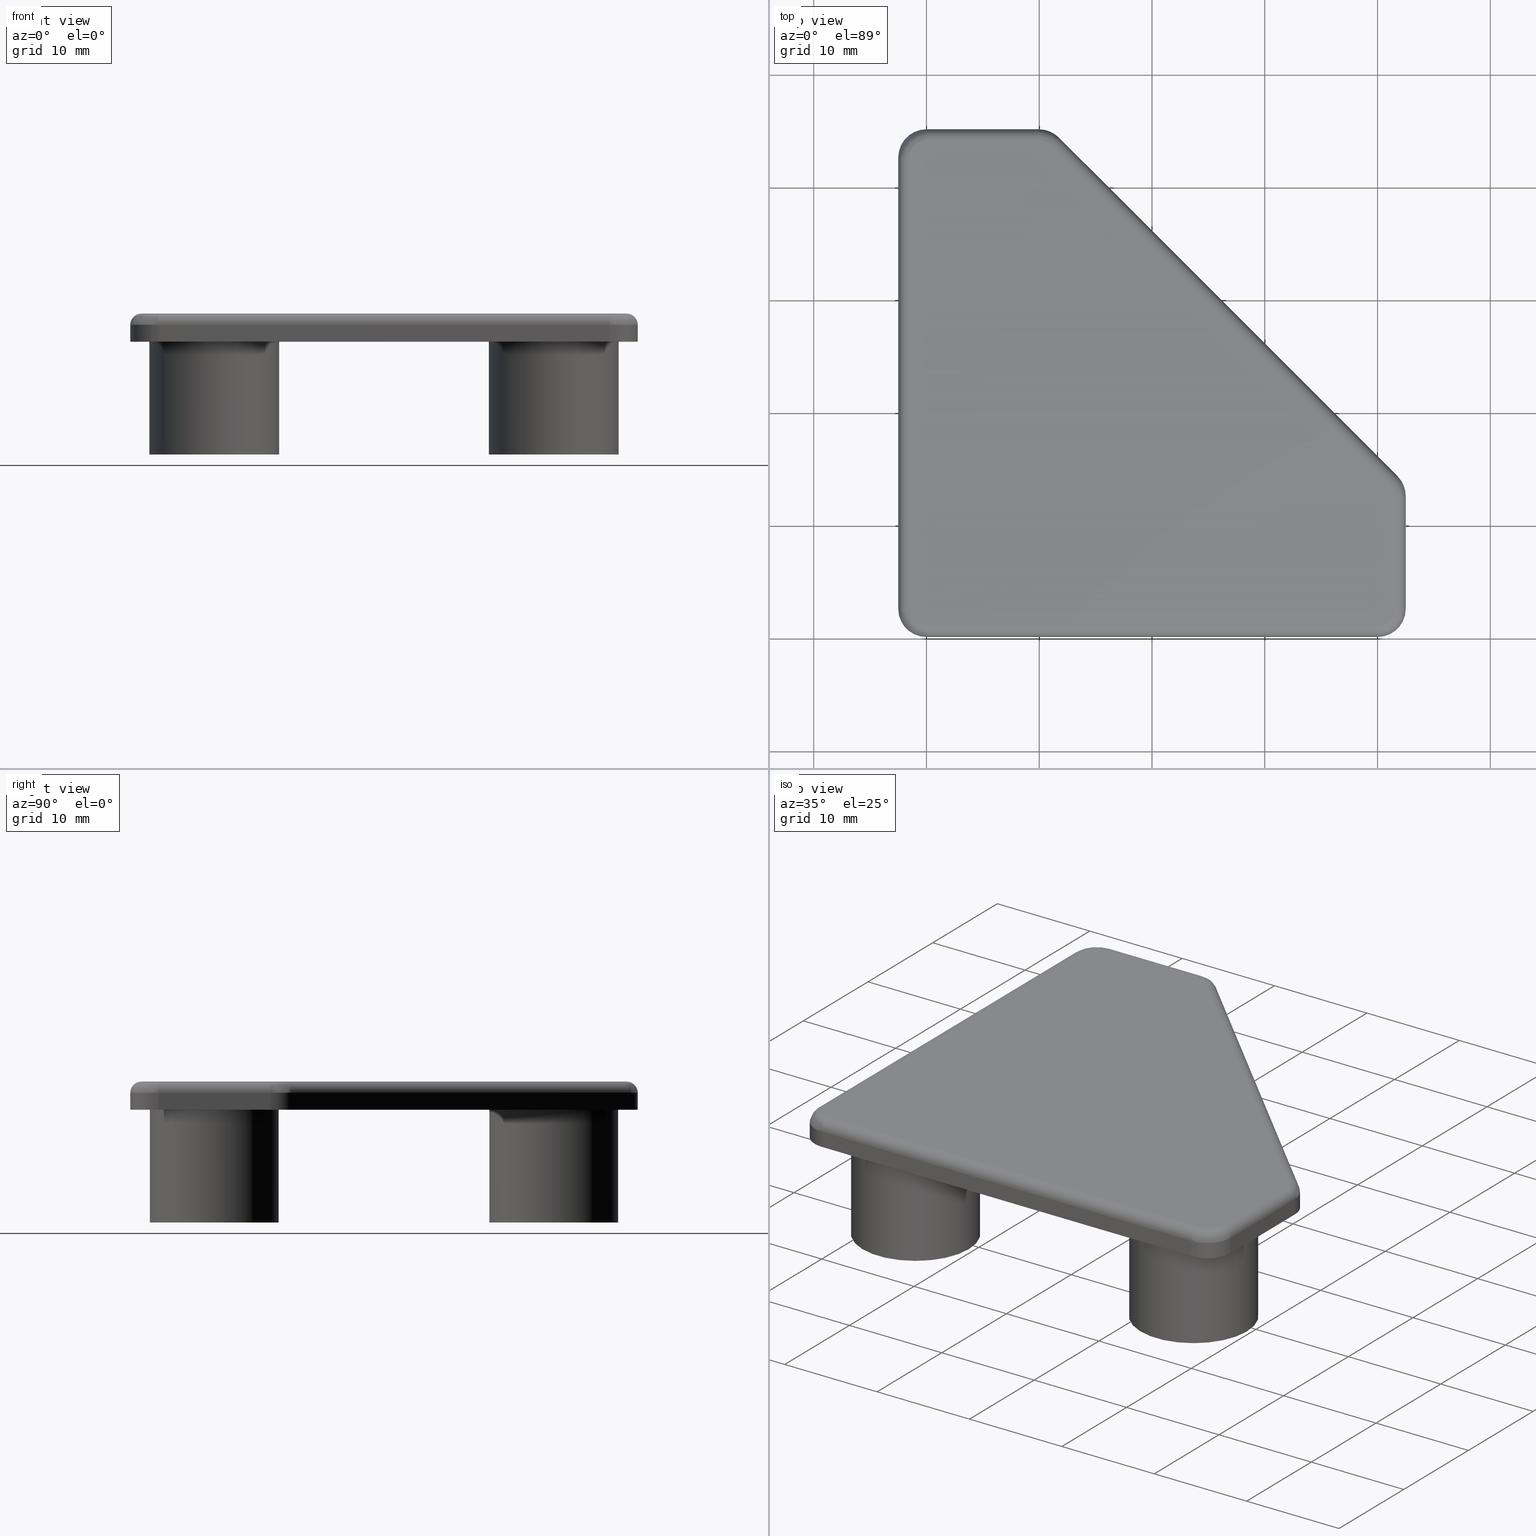
[diagram: canonical four-view strip — front | top / right | iso, engineering-drawing reading convention]
A machine part, canonical four-view strip (front | top / right | iso — engineering-drawing reading convention). The complete STEP part file that produces these views, byte-faithful:
ISO-10303-21;
HEADER;
/* Generated by software containing ST-Developer
 * from STEP Tools, Inc. (www.steptools.com) 
 */

FILE_DESCRIPTION(
/* description */ ('TAPPO X PROFILO 45X45 MM 45\X\B0'),
/* implementation_level */ '2;1');

FILE_NAME(
/* name */ 
'Q:\\Catalogo\\2_Accessori Dierre\\Per Download Web e catalogo cartace
o\\CATALOGO TAPPI DI CHIUSURA\\PAGINA 92\\DTPTR0000127.stp',
/* time_stamp */ '2018-11-08T10:56:59+01:00',
/* author */ ('fzagni'),
/* organization */ (''),
/* preprocessor_version */ 'ST-DEVELOPER v16.1',
/* originating_system */ 'Autodesk Inventor 2016',
/* authorisation */ '');

FILE_SCHEMA (('AUTOMOTIVE_DESIGN { 1 0 10303 214 3 1 1 }'));
ENDSEC;

DATA;
#10=MECHANICAL_DESIGN_GEOMETRIC_PRESENTATION_REPRESENTATION('',(#13),#1099);
#11=SHAPE_REPRESENTATION_RELATIONSHIP('SRR','None',#1108,#12);
#12=ADVANCED_BREP_SHAPE_REPRESENTATION('',(#14),#1098);
#13=STYLED_ITEM('',(#1117),#14);
#14=MANIFOLD_SOLID_BREP('None',#490);
#15=B_SPLINE_SURFACE_WITH_KNOTS('',3,3,((#815,#816,#817,#818,#819,#820,
#821),(#822,#823,#824,#825,#826,#827,#828),(#829,#830,#831,#832,#833,#834,
#835),(#836,#837,#838,#839,#840,#841,#842),(#843,#844,#845,#846,#847,#848,
#849),(#850,#851,#852,#853,#854,#855,#856),(#857,#858,#859,#860,#861,#862,
#863)),.UNSPECIFIED.,.F.,.F.,.F.,(4,1,1,1,4),(4,1,1,1,4),(0.,0.390180644032256,
0.780361288064512,1.17054193209677,1.560794748664),(-7.21725349728367E-5,
0.412207905669849,0.824415811339697,1.23662371700955,1.64890379521437),
 .UNSPECIFIED.);
#16=B_SPLINE_SURFACE_WITH_KNOTS('',3,3,((#868,#869,#870,#871,#872,#873,
#874),(#875,#876,#877,#878,#879,#880,#881),(#882,#883,#884,#885,#886,#887,
#888),(#889,#890,#891,#892,#893,#894,#895),(#896,#897,#898,#899,#900,#901,
#902),(#903,#904,#905,#906,#907,#908,#909),(#910,#911,#912,#913,#914,#915,
#916)),.UNSPECIFIED.,.F.,.F.,.F.,(4,1,1,1,4),(4,1,1,1,4),(0.,0.390180644032257,
0.780361288064513,1.17054193209677,1.56190025130394),(-0.00117767517491716,
0.820446281618692,1.64089256323738,2.46133884485608,3.28296280164967),
 .UNSPECIFIED.);
#17=B_SPLINE_SURFACE_WITH_KNOTS('',3,3,((#920,#921,#922,#923,#924,#925,
#926),(#927,#928,#929,#930,#931,#932,#933),(#934,#935,#936,#937,#938,#939,
#940),(#941,#942,#943,#944,#945,#946,#947),(#948,#949,#950,#951,#952,#953,
#954),(#955,#956,#957,#958,#959,#960,#961),(#962,#963,#964,#965,#966,#967,
#968)),.UNSPECIFIED.,.F.,.F.,.F.,(4,1,1,1,4),(4,1,1,1,4),(0.,0.390180644032256,
0.780361288064512,1.17054193209677,1.56190025083778),(-0.00117767470876062,
0.820446049948988,1.64089209989798,2.46133814984697,3.28296187450471),
 .UNSPECIFIED.);
#18=B_SPLINE_SURFACE_WITH_KNOTS('',3,3,((#972,#973,#974,#975,#976,#977,
#978),(#979,#980,#981,#982,#983,#984,#985),(#986,#987,#988,#989,#990,#991,
#992),(#993,#994,#995,#996,#997,#998,#999),(#1000,#1001,#1002,#1003,#1004,
#1005,#1006),(#1007,#1008,#1009,#1010,#1011,#1012,#1013),(#1014,#1015,#1016,
#1017,#1018,#1019,#1020)),.UNSPECIFIED.,.F.,.F.,.F.,(4,1,1,1,4),(4,1,1,
1,4),(0.,0.390180644032256,0.780361288064513,1.17054193209677,1.56190025091138),
(-0.0011776747823562,0.820446086528355,1.64089217305671,2.46133825958507,
3.28296202089578),.UNSPECIFIED.);
#19=B_SPLINE_SURFACE_WITH_KNOTS('',3,3,((#1024,#1025,#1026,#1027,#1028,
#1029,#1030),(#1031,#1032,#1033,#1034,#1035,#1036,#1037),(#1038,#1039,#1040,
#1041,#1042,#1043,#1044),(#1045,#1046,#1047,#1048,#1049,#1050,#1051),(#1052,
#1053,#1054,#1055,#1056,#1057,#1058),(#1059,#1060,#1061,#1062,#1063,#1064,
#1065),(#1066,#1067,#1068,#1069,#1070,#1071,#1072)),.UNSPECIFIED.,.F.,.F.,
 .F.,(4,1,1,1,4),(4,1,1,1,4),(0.,0.390180644032257,0.780361288064513,1.17054193209677,
1.56079474856649),(-7.21724374679883E-5,0.412207508400462,0.824415016800924,
1.23662252520138,1.64890220603926),.UNSPECIFIED.);
#20=CYLINDRICAL_SURFACE('',#514,2.49999781287765);
#21=CYLINDRICAL_SURFACE('',#517,2.49999999999);
#22=CYLINDRICAL_SURFACE('',#520,2.49999990624018);
#23=CYLINDRICAL_SURFACE('',#523,2.50000049999003);
#24=CYLINDRICAL_SURFACE('',#526,2.49999983940869);
#25=CYLINDRICAL_SURFACE('',#530,1.);
#26=CYLINDRICAL_SURFACE('',#533,1.);
#27=CYLINDRICAL_SURFACE('',#536,1.);
#28=CYLINDRICAL_SURFACE('',#539,1.);
#29=CYLINDRICAL_SURFACE('',#542,1.);
#30=CYLINDRICAL_SURFACE('',#543,5.749999999977);
#31=CYLINDRICAL_SURFACE('',#545,4.99999999998);
#32=CYLINDRICAL_SURFACE('',#548,5.749999999977);
#33=CYLINDRICAL_SURFACE('',#550,4.99999999998);
#34=CYLINDRICAL_SURFACE('',#553,5.749999999977);
#35=CYLINDRICAL_SURFACE('',#555,4.99999999998);
#36=FACE_BOUND('',#83,.T.);
#37=FACE_BOUND('',#84,.T.);
#38=FACE_BOUND('',#85,.T.);
#39=FACE_BOUND('',#111,.T.);
#40=FACE_BOUND('',#113,.T.);
#41=FACE_BOUND('',#115,.T.);
#42=FACE_BOUND('',#117,.T.);
#43=FACE_BOUND('',#119,.T.);
#44=FACE_BOUND('',#121,.T.);
#45=FACE_BOUND('',#123,.T.);
#46=FACE_BOUND('',#125,.T.);
#47=FACE_BOUND('',#127,.T.);
#48=FACE_OUTER_BOUND('',#82,.T.);
#49=FACE_OUTER_BOUND('',#86,.T.);
#50=FACE_OUTER_BOUND('',#87,.T.);
#51=FACE_OUTER_BOUND('',#88,.T.);
#52=FACE_OUTER_BOUND('',#89,.T.);
#53=FACE_OUTER_BOUND('',#90,.T.);
#54=FACE_OUTER_BOUND('',#91,.T.);
#55=FACE_OUTER_BOUND('',#92,.T.);
#56=FACE_OUTER_BOUND('',#93,.T.);
#57=FACE_OUTER_BOUND('',#94,.T.);
#58=FACE_OUTER_BOUND('',#95,.T.);
#59=FACE_OUTER_BOUND('',#96,.T.);
#60=FACE_OUTER_BOUND('',#97,.T.);
#61=FACE_OUTER_BOUND('',#98,.T.);
#62=FACE_OUTER_BOUND('',#99,.T.);
#63=FACE_OUTER_BOUND('',#100,.T.);
#64=FACE_OUTER_BOUND('',#101,.T.);
#65=FACE_OUTER_BOUND('',#102,.T.);
#66=FACE_OUTER_BOUND('',#103,.T.);
#67=FACE_OUTER_BOUND('',#104,.T.);
#68=FACE_OUTER_BOUND('',#105,.T.);
#69=FACE_OUTER_BOUND('',#106,.T.);
#70=FACE_OUTER_BOUND('',#107,.T.);
#71=FACE_OUTER_BOUND('',#108,.T.);
#72=FACE_OUTER_BOUND('',#109,.T.);
#73=FACE_OUTER_BOUND('',#110,.T.);
#74=FACE_OUTER_BOUND('',#112,.T.);
#75=FACE_OUTER_BOUND('',#114,.T.);
#76=FACE_OUTER_BOUND('',#116,.T.);
#77=FACE_OUTER_BOUND('',#118,.T.);
#78=FACE_OUTER_BOUND('',#120,.T.);
#79=FACE_OUTER_BOUND('',#122,.T.);
#80=FACE_OUTER_BOUND('',#124,.T.);
#81=FACE_OUTER_BOUND('',#126,.T.);
#82=EDGE_LOOP('',(#319,#320,#321,#322,#323,#324,#325,#326,#327,#328));
#83=EDGE_LOOP('',(#329));
#84=EDGE_LOOP('',(#330));
#85=EDGE_LOOP('',(#331));
#86=EDGE_LOOP('',(#332));
#87=EDGE_LOOP('',(#333));
#88=EDGE_LOOP('',(#334));
#89=EDGE_LOOP('',(#335,#336,#337,#338,#339,#340,#341,#342,#343,#344));
#90=EDGE_LOOP('',(#345,#346,#347,#348));
#91=EDGE_LOOP('',(#349,#350,#351,#352));
#92=EDGE_LOOP('',(#353,#354,#355,#356));
#93=EDGE_LOOP('',(#357,#358,#359,#360));
#94=EDGE_LOOP('',(#361,#362,#363,#364));
#95=EDGE_LOOP('',(#365,#366,#367,#368));
#96=EDGE_LOOP('',(#369,#370,#371,#372));
#97=EDGE_LOOP('',(#373,#374,#375,#376));
#98=EDGE_LOOP('',(#377,#378,#379,#380));
#99=EDGE_LOOP('',(#381,#382,#383,#384));
#100=EDGE_LOOP('',(#385,#386,#387,#388));
#101=EDGE_LOOP('',(#389,#390,#391,#392));
#102=EDGE_LOOP('',(#393,#394,#395,#396));
#103=EDGE_LOOP('',(#397,#398,#399,#400));
#104=EDGE_LOOP('',(#401,#402,#403,#404));
#105=EDGE_LOOP('',(#405,#406,#407,#408));
#106=EDGE_LOOP('',(#409,#410,#411,#412));
#107=EDGE_LOOP('',(#413,#414,#415,#416));
#108=EDGE_LOOP('',(#417,#418,#419,#420));
#109=EDGE_LOOP('',(#421,#422,#423,#424));
#110=EDGE_LOOP('',(#425));
#111=EDGE_LOOP('',(#426));
#112=EDGE_LOOP('',(#427));
#113=EDGE_LOOP('',(#428));
#114=EDGE_LOOP('',(#429));
#115=EDGE_LOOP('',(#430));
#116=EDGE_LOOP('',(#431));
#117=EDGE_LOOP('',(#432));
#118=EDGE_LOOP('',(#433));
#119=EDGE_LOOP('',(#434));
#120=EDGE_LOOP('',(#435));
#121=EDGE_LOOP('',(#436));
#122=EDGE_LOOP('',(#437));
#123=EDGE_LOOP('',(#438));
#124=EDGE_LOOP('',(#439));
#125=EDGE_LOOP('',(#440));
#126=EDGE_LOOP('',(#441));
#127=EDGE_LOOP('',(#442));
#128=CIRCLE('',#493,2.49999990624018);
#129=CIRCLE('',#494,2.49999999999);
#130=CIRCLE('',#495,2.49999781287765);
#131=CIRCLE('',#496,2.49999983940869);
#132=CIRCLE('',#497,2.50000049999003);
#133=CIRCLE('',#498,5.749999999977);
#134=CIRCLE('',#499,5.749999999977);
#135=CIRCLE('',#500,5.749999999977);
#136=CIRCLE('',#502,4.99999999998);
#137=CIRCLE('',#504,4.99999999998);
#138=CIRCLE('',#506,4.99999999998);
#139=CIRCLE('',#508,1.49999983940869);
#140=CIRCLE('',#509,1.49999781287765);
#141=CIRCLE('',#510,1.49999999999);
#142=CIRCLE('',#511,1.49999990624018);
#143=CIRCLE('',#512,1.50000049999003);
#144=CIRCLE('',#515,2.49999781287765);
#145=CIRCLE('',#518,2.49999999999);
#146=CIRCLE('',#521,2.49999990624018);
#147=CIRCLE('',#524,2.50000049999003);
#148=CIRCLE('',#527,2.49999983940869);
#149=CIRCLE('',#528,1.);
#150=CIRCLE('',#529,1.);
#151=CIRCLE('',#531,1.);
#152=CIRCLE('',#532,1.);
#153=CIRCLE('',#534,1.);
#154=CIRCLE('',#535,1.);
#155=CIRCLE('',#537,1.);
#156=CIRCLE('',#538,1.);
#157=CIRCLE('',#540,1.);
#158=CIRCLE('',#541,0.999999999999998);
#159=CIRCLE('',#544,5.749999999977);
#160=CIRCLE('',#546,4.99999999998);
#161=CIRCLE('',#549,5.749999999977);
#162=CIRCLE('',#551,4.99999999998);
#163=CIRCLE('',#554,5.749999999977);
#164=CIRCLE('',#556,4.99999999998);
#165=LINE('',#721,#190);
#166=LINE('',#725,#191);
#167=LINE('',#729,#192);
#168=LINE('',#733,#193);
#169=LINE('',#737,#194);
#170=LINE('',#759,#195);
#171=LINE('',#763,#196);
#172=LINE('',#767,#197);
#173=LINE('',#771,#198);
#174=LINE('',#774,#199);
#175=LINE('',#777,#200);
#176=LINE('',#779,#201);
#177=LINE('',#780,#202);
#178=LINE('',#783,#203);
#179=LINE('',#787,#204);
#180=LINE('',#788,#205);
#181=LINE('',#791,#206);
#182=LINE('',#795,#207);
#183=LINE('',#796,#208);
#184=LINE('',#799,#209);
#185=LINE('',#803,#210);
#186=LINE('',#804,#211);
#187=LINE('',#807,#212);
#188=LINE('',#811,#213);
#189=LINE('',#812,#214);
#190=VECTOR('',#562,39.9999535935901);
#191=VECTOR('',#565,39.99995559359);
#192=VECTOR('',#568,9.96442099996013);
#193=VECTOR('',#571,42.4766603751637);
#194=VECTOR('',#574,9.96442116054299);
#195=VECTOR('',#599,42.4766603751637);
#196=VECTOR('',#602,9.96442099996013);
#197=VECTOR('',#605,39.99995559359);
#198=VECTOR('',#608,39.9999535935901);
#199=VECTOR('',#611,9.96442116054263);
#200=VECTOR('',#614,1.49999999999);
#201=VECTOR('',#615,42.4766603751637);
#202=VECTOR('',#616,1.49999999999);
#203=VECTOR('',#619,1.49999999999);
#204=VECTOR('',#624,1.49999999999);
#205=VECTOR('',#625,9.96442099996013);
#206=VECTOR('',#628,1.49999999999);
#207=VECTOR('',#633,1.49999999999);
#208=VECTOR('',#634,39.99995559359);
#209=VECTOR('',#637,1.49999999999);
#210=VECTOR('',#642,1.49999999999);
#211=VECTOR('',#643,39.9999535935901);
#212=VECTOR('',#646,1.49999999999);
#213=VECTOR('',#651,1.49999999999);
#214=VECTOR('',#652,9.96442116054299);
#215=VERTEX_POINT('',#719);
#216=VERTEX_POINT('',#720);
#217=VERTEX_POINT('',#722);
#218=VERTEX_POINT('',#724);
#219=VERTEX_POINT('',#726);
#220=VERTEX_POINT('',#728);
#221=VERTEX_POINT('',#730);
#222=VERTEX_POINT('',#732);
#223=VERTEX_POINT('',#734);
#224=VERTEX_POINT('',#736);
#225=VERTEX_POINT('',#739);
#226=VERTEX_POINT('',#741);
#227=VERTEX_POINT('',#743);
#228=VERTEX_POINT('',#746);
#229=VERTEX_POINT('',#749);
#230=VERTEX_POINT('',#752);
#231=VERTEX_POINT('',#755);
#232=VERTEX_POINT('',#756);
#233=VERTEX_POINT('',#758);
#234=VERTEX_POINT('',#760);
#235=VERTEX_POINT('',#762);
#236=VERTEX_POINT('',#764);
#237=VERTEX_POINT('',#766);
#238=VERTEX_POINT('',#768);
#239=VERTEX_POINT('',#770);
#240=VERTEX_POINT('',#772);
#241=VERTEX_POINT('',#776);
#242=VERTEX_POINT('',#778);
#243=VERTEX_POINT('',#782);
#244=VERTEX_POINT('',#786);
#245=VERTEX_POINT('',#790);
#246=VERTEX_POINT('',#794);
#247=VERTEX_POINT('',#798);
#248=VERTEX_POINT('',#802);
#249=VERTEX_POINT('',#806);
#250=VERTEX_POINT('',#810);
#251=VERTEX_POINT('',#1076);
#252=VERTEX_POINT('',#1079);
#253=VERTEX_POINT('',#1083);
#254=VERTEX_POINT('',#1086);
#255=VERTEX_POINT('',#1090);
#256=VERTEX_POINT('',#1093);
#257=EDGE_CURVE('',#215,#216,#165,.T.);
#258=EDGE_CURVE('',#217,#215,#128,.T.);
#259=EDGE_CURVE('',#218,#217,#166,.T.);
#260=EDGE_CURVE('',#219,#218,#129,.T.);
#261=EDGE_CURVE('',#220,#219,#167,.T.);
#262=EDGE_CURVE('',#221,#220,#130,.T.);
#263=EDGE_CURVE('',#222,#221,#168,.T.);
#264=EDGE_CURVE('',#223,#222,#131,.T.);
#265=EDGE_CURVE('',#224,#223,#169,.T.);
#266=EDGE_CURVE('',#216,#224,#132,.T.);
#267=EDGE_CURVE('',#225,#225,#133,.T.);
#268=EDGE_CURVE('',#226,#226,#134,.T.);
#269=EDGE_CURVE('',#227,#227,#135,.T.);
#270=EDGE_CURVE('',#228,#228,#136,.T.);
#271=EDGE_CURVE('',#229,#229,#137,.T.);
#272=EDGE_CURVE('',#230,#230,#138,.T.);
#273=EDGE_CURVE('',#231,#232,#139,.T.);
#274=EDGE_CURVE('',#232,#233,#170,.T.);
#275=EDGE_CURVE('',#233,#234,#140,.T.);
#276=EDGE_CURVE('',#234,#235,#171,.T.);
#277=EDGE_CURVE('',#235,#236,#141,.T.);
#278=EDGE_CURVE('',#236,#237,#172,.T.);
#279=EDGE_CURVE('',#237,#238,#142,.T.);
#280=EDGE_CURVE('',#238,#239,#173,.T.);
#281=EDGE_CURVE('',#239,#240,#143,.T.);
#282=EDGE_CURVE('',#240,#231,#174,.T.);
#283=EDGE_CURVE('',#221,#241,#175,.T.);
#284=EDGE_CURVE('',#242,#241,#176,.T.);
#285=EDGE_CURVE('',#222,#242,#177,.T.);
#286=EDGE_CURVE('',#220,#243,#178,.T.);
#287=EDGE_CURVE('',#241,#243,#144,.T.);
#288=EDGE_CURVE('',#219,#244,#179,.T.);
#289=EDGE_CURVE('',#243,#244,#180,.T.);
#290=EDGE_CURVE('',#218,#245,#181,.T.);
#291=EDGE_CURVE('',#244,#245,#145,.T.);
#292=EDGE_CURVE('',#217,#246,#182,.T.);
#293=EDGE_CURVE('',#245,#246,#183,.T.);
#294=EDGE_CURVE('',#215,#247,#184,.T.);
#295=EDGE_CURVE('',#246,#247,#146,.T.);
#296=EDGE_CURVE('',#216,#248,#185,.T.);
#297=EDGE_CURVE('',#247,#248,#186,.T.);
#298=EDGE_CURVE('',#224,#249,#187,.T.);
#299=EDGE_CURVE('',#248,#249,#147,.T.);
#300=EDGE_CURVE('',#223,#250,#188,.T.);
#301=EDGE_CURVE('',#249,#250,#189,.T.);
#302=EDGE_CURVE('',#250,#242,#148,.T.);
#303=EDGE_CURVE('',#242,#232,#149,.T.);
#304=EDGE_CURVE('',#250,#231,#150,.T.);
#305=EDGE_CURVE('',#249,#240,#151,.T.);
#306=EDGE_CURVE('',#248,#239,#152,.T.);
#307=EDGE_CURVE('',#247,#238,#153,.T.);
#308=EDGE_CURVE('',#246,#237,#154,.T.);
#309=EDGE_CURVE('',#245,#236,#155,.T.);
#310=EDGE_CURVE('',#244,#235,#156,.T.);
#311=EDGE_CURVE('',#243,#234,#157,.T.);
#312=EDGE_CURVE('',#241,#233,#158,.T.);
#313=EDGE_CURVE('',#251,#251,#159,.T.);
#314=EDGE_CURVE('',#252,#252,#160,.T.);
#315=EDGE_CURVE('',#253,#253,#161,.T.);
#316=EDGE_CURVE('',#254,#254,#162,.T.);
#317=EDGE_CURVE('',#255,#255,#163,.T.);
#318=EDGE_CURVE('',#256,#256,#164,.T.);
#319=ORIENTED_EDGE('',*,*,#257,.F.);
#320=ORIENTED_EDGE('',*,*,#258,.F.);
#321=ORIENTED_EDGE('',*,*,#259,.F.);
#322=ORIENTED_EDGE('',*,*,#260,.F.);
#323=ORIENTED_EDGE('',*,*,#261,.F.);
#324=ORIENTED_EDGE('',*,*,#262,.F.);
#325=ORIENTED_EDGE('',*,*,#263,.F.);
#326=ORIENTED_EDGE('',*,*,#264,.F.);
#327=ORIENTED_EDGE('',*,*,#265,.F.);
#328=ORIENTED_EDGE('',*,*,#266,.F.);
#329=ORIENTED_EDGE('',*,*,#267,.F.);
#330=ORIENTED_EDGE('',*,*,#268,.F.);
#331=ORIENTED_EDGE('',*,*,#269,.F.);
#332=ORIENTED_EDGE('',*,*,#270,.F.);
#333=ORIENTED_EDGE('',*,*,#271,.F.);
#334=ORIENTED_EDGE('',*,*,#272,.F.);
#335=ORIENTED_EDGE('',*,*,#273,.T.);
#336=ORIENTED_EDGE('',*,*,#274,.T.);
#337=ORIENTED_EDGE('',*,*,#275,.T.);
#338=ORIENTED_EDGE('',*,*,#276,.T.);
#339=ORIENTED_EDGE('',*,*,#277,.T.);
#340=ORIENTED_EDGE('',*,*,#278,.T.);
#341=ORIENTED_EDGE('',*,*,#279,.T.);
#342=ORIENTED_EDGE('',*,*,#280,.T.);
#343=ORIENTED_EDGE('',*,*,#281,.T.);
#344=ORIENTED_EDGE('',*,*,#282,.T.);
#345=ORIENTED_EDGE('',*,*,#263,.T.);
#346=ORIENTED_EDGE('',*,*,#283,.T.);
#347=ORIENTED_EDGE('',*,*,#284,.F.);
#348=ORIENTED_EDGE('',*,*,#285,.F.);
#349=ORIENTED_EDGE('',*,*,#262,.T.);
#350=ORIENTED_EDGE('',*,*,#286,.T.);
#351=ORIENTED_EDGE('',*,*,#287,.F.);
#352=ORIENTED_EDGE('',*,*,#283,.F.);
#353=ORIENTED_EDGE('',*,*,#261,.T.);
#354=ORIENTED_EDGE('',*,*,#288,.T.);
#355=ORIENTED_EDGE('',*,*,#289,.F.);
#356=ORIENTED_EDGE('',*,*,#286,.F.);
#357=ORIENTED_EDGE('',*,*,#260,.T.);
#358=ORIENTED_EDGE('',*,*,#290,.T.);
#359=ORIENTED_EDGE('',*,*,#291,.F.);
#360=ORIENTED_EDGE('',*,*,#288,.F.);
#361=ORIENTED_EDGE('',*,*,#259,.T.);
#362=ORIENTED_EDGE('',*,*,#292,.T.);
#363=ORIENTED_EDGE('',*,*,#293,.F.);
#364=ORIENTED_EDGE('',*,*,#290,.F.);
#365=ORIENTED_EDGE('',*,*,#258,.T.);
#366=ORIENTED_EDGE('',*,*,#294,.T.);
#367=ORIENTED_EDGE('',*,*,#295,.F.);
#368=ORIENTED_EDGE('',*,*,#292,.F.);
#369=ORIENTED_EDGE('',*,*,#296,.T.);
#370=ORIENTED_EDGE('',*,*,#297,.F.);
#371=ORIENTED_EDGE('',*,*,#294,.F.);
#372=ORIENTED_EDGE('',*,*,#257,.T.);
#373=ORIENTED_EDGE('',*,*,#266,.T.);
#374=ORIENTED_EDGE('',*,*,#298,.T.);
#375=ORIENTED_EDGE('',*,*,#299,.F.);
#376=ORIENTED_EDGE('',*,*,#296,.F.);
#377=ORIENTED_EDGE('',*,*,#265,.T.);
#378=ORIENTED_EDGE('',*,*,#300,.T.);
#379=ORIENTED_EDGE('',*,*,#301,.F.);
#380=ORIENTED_EDGE('',*,*,#298,.F.);
#381=ORIENTED_EDGE('',*,*,#264,.T.);
#382=ORIENTED_EDGE('',*,*,#285,.T.);
#383=ORIENTED_EDGE('',*,*,#302,.F.);
#384=ORIENTED_EDGE('',*,*,#300,.F.);
#385=ORIENTED_EDGE('',*,*,#302,.T.);
#386=ORIENTED_EDGE('',*,*,#303,.T.);
#387=ORIENTED_EDGE('',*,*,#273,.F.);
#388=ORIENTED_EDGE('',*,*,#304,.F.);
#389=ORIENTED_EDGE('',*,*,#304,.T.);
#390=ORIENTED_EDGE('',*,*,#282,.F.);
#391=ORIENTED_EDGE('',*,*,#305,.F.);
#392=ORIENTED_EDGE('',*,*,#301,.T.);
#393=ORIENTED_EDGE('',*,*,#305,.T.);
#394=ORIENTED_EDGE('',*,*,#281,.F.);
#395=ORIENTED_EDGE('',*,*,#306,.F.);
#396=ORIENTED_EDGE('',*,*,#299,.T.);
#397=ORIENTED_EDGE('',*,*,#306,.T.);
#398=ORIENTED_EDGE('',*,*,#280,.F.);
#399=ORIENTED_EDGE('',*,*,#307,.F.);
#400=ORIENTED_EDGE('',*,*,#297,.T.);
#401=ORIENTED_EDGE('',*,*,#307,.T.);
#402=ORIENTED_EDGE('',*,*,#279,.F.);
#403=ORIENTED_EDGE('',*,*,#308,.F.);
#404=ORIENTED_EDGE('',*,*,#295,.T.);
#405=ORIENTED_EDGE('',*,*,#308,.T.);
#406=ORIENTED_EDGE('',*,*,#278,.F.);
#407=ORIENTED_EDGE('',*,*,#309,.F.);
#408=ORIENTED_EDGE('',*,*,#293,.T.);
#409=ORIENTED_EDGE('',*,*,#309,.T.);
#410=ORIENTED_EDGE('',*,*,#277,.F.);
#411=ORIENTED_EDGE('',*,*,#310,.F.);
#412=ORIENTED_EDGE('',*,*,#291,.T.);
#413=ORIENTED_EDGE('',*,*,#310,.T.);
#414=ORIENTED_EDGE('',*,*,#276,.F.);
#415=ORIENTED_EDGE('',*,*,#311,.F.);
#416=ORIENTED_EDGE('',*,*,#289,.T.);
#417=ORIENTED_EDGE('',*,*,#311,.T.);
#418=ORIENTED_EDGE('',*,*,#275,.F.);
#419=ORIENTED_EDGE('',*,*,#312,.F.);
#420=ORIENTED_EDGE('',*,*,#287,.T.);
#421=ORIENTED_EDGE('',*,*,#284,.T.);
#422=ORIENTED_EDGE('',*,*,#312,.T.);
#423=ORIENTED_EDGE('',*,*,#274,.F.);
#424=ORIENTED_EDGE('',*,*,#303,.F.);
#425=ORIENTED_EDGE('',*,*,#267,.T.);
#426=ORIENTED_EDGE('',*,*,#313,.F.);
#427=ORIENTED_EDGE('',*,*,#272,.T.);
#428=ORIENTED_EDGE('',*,*,#314,.F.);
#429=ORIENTED_EDGE('',*,*,#313,.T.);
#430=ORIENTED_EDGE('',*,*,#314,.T.);
#431=ORIENTED_EDGE('',*,*,#268,.T.);
#432=ORIENTED_EDGE('',*,*,#315,.F.);
#433=ORIENTED_EDGE('',*,*,#271,.T.);
#434=ORIENTED_EDGE('',*,*,#316,.F.);
#435=ORIENTED_EDGE('',*,*,#315,.T.);
#436=ORIENTED_EDGE('',*,*,#316,.T.);
#437=ORIENTED_EDGE('',*,*,#269,.T.);
#438=ORIENTED_EDGE('',*,*,#317,.F.);
#439=ORIENTED_EDGE('',*,*,#270,.T.);
#440=ORIENTED_EDGE('',*,*,#318,.F.);
#441=ORIENTED_EDGE('',*,*,#317,.T.);
#442=ORIENTED_EDGE('',*,*,#318,.T.);
#443=PLANE('',#492);
#444=PLANE('',#501);
#445=PLANE('',#503);
#446=PLANE('',#505);
#447=PLANE('',#507);
#448=PLANE('',#513);
#449=PLANE('',#516);
#450=PLANE('',#519);
#451=PLANE('',#522);
#452=PLANE('',#525);
#453=PLANE('',#547);
#454=PLANE('',#552);
#455=PLANE('',#557);
#456=ADVANCED_FACE('',(#48,#36,#37,#38),#443,.F.);
#457=ADVANCED_FACE('',(#49),#444,.F.);
#458=ADVANCED_FACE('',(#50),#445,.F.);
#459=ADVANCED_FACE('',(#51),#446,.F.);
#460=ADVANCED_FACE('',(#52),#447,.T.);
#461=ADVANCED_FACE('',(#53),#448,.T.);
#462=ADVANCED_FACE('',(#54),#20,.T.);
#463=ADVANCED_FACE('',(#55),#449,.T.);
#464=ADVANCED_FACE('',(#56),#21,.T.);
#465=ADVANCED_FACE('',(#57),#450,.T.);
#466=ADVANCED_FACE('',(#58),#22,.T.);
#467=ADVANCED_FACE('',(#59),#451,.T.);
#468=ADVANCED_FACE('',(#60),#23,.T.);
#469=ADVANCED_FACE('',(#61),#452,.T.);
#470=ADVANCED_FACE('',(#62),#24,.T.);
#471=ADVANCED_FACE('',(#63),#15,.F.);
#472=ADVANCED_FACE('',(#64),#25,.T.);
#473=ADVANCED_FACE('',(#65),#16,.F.);
#474=ADVANCED_FACE('',(#66),#26,.T.);
#475=ADVANCED_FACE('',(#67),#17,.F.);
#476=ADVANCED_FACE('',(#68),#27,.T.);
#477=ADVANCED_FACE('',(#69),#18,.F.);
#478=ADVANCED_FACE('',(#70),#28,.T.);
#479=ADVANCED_FACE('',(#71),#19,.F.);
#480=ADVANCED_FACE('',(#72),#29,.T.);
#481=ADVANCED_FACE('',(#73,#39),#30,.T.);
#482=ADVANCED_FACE('',(#74,#40),#31,.F.);
#483=ADVANCED_FACE('',(#75,#41),#453,.T.);
#484=ADVANCED_FACE('',(#76,#42),#32,.T.);
#485=ADVANCED_FACE('',(#77,#43),#33,.F.);
#486=ADVANCED_FACE('',(#78,#44),#454,.T.);
#487=ADVANCED_FACE('',(#79,#45),#34,.T.);
#488=ADVANCED_FACE('',(#80,#46),#35,.F.);
#489=ADVANCED_FACE('',(#81,#47),#455,.T.);
#490=CLOSED_SHELL('',(#456,#457,#458,#459,#460,#461,#462,#463,#464,#465,
#466,#467,#468,#469,#470,#471,#472,#473,#474,#475,#476,#477,#478,#479,#480,
#481,#482,#483,#484,#485,#486,#487,#488,#489));
#491=AXIS2_PLACEMENT_3D('placement',#717,#558,#559);
#492=AXIS2_PLACEMENT_3D('',#718,#560,#561);
#493=AXIS2_PLACEMENT_3D('',#723,#563,#564);
#494=AXIS2_PLACEMENT_3D('',#727,#566,#567);
#495=AXIS2_PLACEMENT_3D('',#731,#569,#570);
#496=AXIS2_PLACEMENT_3D('',#735,#572,#573);
#497=AXIS2_PLACEMENT_3D('',#738,#575,#576);
#498=AXIS2_PLACEMENT_3D('',#740,#577,#578);
#499=AXIS2_PLACEMENT_3D('',#742,#579,#580);
#500=AXIS2_PLACEMENT_3D('',#744,#581,#582);
#501=AXIS2_PLACEMENT_3D('',#745,#583,#584);
#502=AXIS2_PLACEMENT_3D('',#747,#585,#586);
#503=AXIS2_PLACEMENT_3D('',#748,#587,#588);
#504=AXIS2_PLACEMENT_3D('',#750,#589,#590);
#505=AXIS2_PLACEMENT_3D('',#751,#591,#592);
#506=AXIS2_PLACEMENT_3D('',#753,#593,#594);
#507=AXIS2_PLACEMENT_3D('',#754,#595,#596);
#508=AXIS2_PLACEMENT_3D('',#757,#597,#598);
#509=AXIS2_PLACEMENT_3D('',#761,#600,#601);
#510=AXIS2_PLACEMENT_3D('',#765,#603,#604);
#511=AXIS2_PLACEMENT_3D('',#769,#606,#607);
#512=AXIS2_PLACEMENT_3D('',#773,#609,#610);
#513=AXIS2_PLACEMENT_3D('',#775,#612,#613);
#514=AXIS2_PLACEMENT_3D('',#781,#617,#618);
#515=AXIS2_PLACEMENT_3D('',#784,#620,#621);
#516=AXIS2_PLACEMENT_3D('',#785,#622,#623);
#517=AXIS2_PLACEMENT_3D('',#789,#626,#627);
#518=AXIS2_PLACEMENT_3D('',#792,#629,#630);
#519=AXIS2_PLACEMENT_3D('',#793,#631,#632);
#520=AXIS2_PLACEMENT_3D('',#797,#635,#636);
#521=AXIS2_PLACEMENT_3D('',#800,#638,#639);
#522=AXIS2_PLACEMENT_3D('',#801,#640,#641);
#523=AXIS2_PLACEMENT_3D('',#805,#644,#645);
#524=AXIS2_PLACEMENT_3D('',#808,#647,#648);
#525=AXIS2_PLACEMENT_3D('',#809,#649,#650);
#526=AXIS2_PLACEMENT_3D('',#813,#653,#654);
#527=AXIS2_PLACEMENT_3D('',#814,#655,#656);
#528=AXIS2_PLACEMENT_3D('',#864,#657,#658);
#529=AXIS2_PLACEMENT_3D('',#865,#659,#660);
#530=AXIS2_PLACEMENT_3D('',#866,#661,#662);
#531=AXIS2_PLACEMENT_3D('',#867,#663,#664);
#532=AXIS2_PLACEMENT_3D('',#917,#665,#666);
#533=AXIS2_PLACEMENT_3D('',#918,#667,#668);
#534=AXIS2_PLACEMENT_3D('',#919,#669,#670);
#535=AXIS2_PLACEMENT_3D('',#969,#671,#672);
#536=AXIS2_PLACEMENT_3D('',#970,#673,#674);
#537=AXIS2_PLACEMENT_3D('',#971,#675,#676);
#538=AXIS2_PLACEMENT_3D('',#1021,#677,#678);
#539=AXIS2_PLACEMENT_3D('',#1022,#679,#680);
#540=AXIS2_PLACEMENT_3D('',#1023,#681,#682);
#541=AXIS2_PLACEMENT_3D('',#1073,#683,#684);
#542=AXIS2_PLACEMENT_3D('',#1074,#685,#686);
#543=AXIS2_PLACEMENT_3D('',#1075,#687,#688);
#544=AXIS2_PLACEMENT_3D('',#1077,#689,#690);
#545=AXIS2_PLACEMENT_3D('',#1078,#691,#692);
#546=AXIS2_PLACEMENT_3D('',#1080,#693,#694);
#547=AXIS2_PLACEMENT_3D('',#1081,#695,#696);
#548=AXIS2_PLACEMENT_3D('',#1082,#697,#698);
#549=AXIS2_PLACEMENT_3D('',#1084,#699,#700);
#550=AXIS2_PLACEMENT_3D('',#1085,#701,#702);
#551=AXIS2_PLACEMENT_3D('',#1087,#703,#704);
#552=AXIS2_PLACEMENT_3D('',#1088,#705,#706);
#553=AXIS2_PLACEMENT_3D('',#1089,#707,#708);
#554=AXIS2_PLACEMENT_3D('',#1091,#709,#710);
#555=AXIS2_PLACEMENT_3D('',#1092,#711,#712);
#556=AXIS2_PLACEMENT_3D('',#1094,#713,#714);
#557=AXIS2_PLACEMENT_3D('',#1095,#715,#716);
#558=DIRECTION('axis',(0.,0.,1.));
#559=DIRECTION('refdir',(1.,0.,0.));
#560=DIRECTION('center_axis',(0.,0.,1.));
#561=DIRECTION('ref_axis',(1.,0.,0.));
#562=DIRECTION('',(1.,0.,0.));
#563=DIRECTION('center_axis',(0.,0.,1.));
#564=DIRECTION('ref_axis',(0.,-1.,0.));
#565=DIRECTION('',(0.,-1.,0.));
#566=DIRECTION('center_axis',(0.,0.,1.));
#567=DIRECTION('ref_axis',(1.,0.,0.));
#568=DIRECTION('',(-1.,0.,0.));
#569=DIRECTION('center_axis',(0.,0.,1.));
#570=DIRECTION('ref_axis',(0.,1.,0.));
#571=DIRECTION('',(-0.70710678118653,0.707106781186565,0.));
#572=DIRECTION('center_axis',(0.,0.,1.));
#573=DIRECTION('ref_axis',(1.,0.,0.));
#574=DIRECTION('',(0.,1.,0.));
#575=DIRECTION('center_axis',(0.,0.,1.));
#576=DIRECTION('ref_axis',(1.,0.,0.));
#577=DIRECTION('center_axis',(0.,0.,-1.));
#578=DIRECTION('ref_axis',(1.,0.,0.));
#579=DIRECTION('center_axis',(0.,0.,-1.));
#580=DIRECTION('ref_axis',(1.,0.,0.));
#581=DIRECTION('center_axis',(0.,0.,-1.));
#582=DIRECTION('ref_axis',(1.,0.,0.));
#583=DIRECTION('center_axis',(0.,0.,1.));
#584=DIRECTION('ref_axis',(1.,0.,0.));
#585=DIRECTION('center_axis',(0.,0.,1.));
#586=DIRECTION('ref_axis',(1.,0.,0.));
#587=DIRECTION('center_axis',(0.,0.,1.));
#588=DIRECTION('ref_axis',(1.,0.,0.));
#589=DIRECTION('center_axis',(0.,0.,1.));
#590=DIRECTION('ref_axis',(1.,0.,0.));
#591=DIRECTION('center_axis',(0.,0.,1.));
#592=DIRECTION('ref_axis',(1.,0.,0.));
#593=DIRECTION('center_axis',(0.,0.,1.));
#594=DIRECTION('ref_axis',(1.,0.,0.));
#595=DIRECTION('center_axis',(0.,0.,1.));
#596=DIRECTION('ref_axis',(1.,0.,0.));
#597=DIRECTION('center_axis',(0.,0.,1.));
#598=DIRECTION('ref_axis',(1.,0.,0.));
#599=DIRECTION('',(-0.70710678118653,0.707106781186565,0.));
#600=DIRECTION('center_axis',(0.,0.,1.));
#601=DIRECTION('ref_axis',(0.,1.,0.));
#602=DIRECTION('',(-1.,0.,0.));
#603=DIRECTION('center_axis',(0.,0.,1.));
#604=DIRECTION('ref_axis',(1.,0.,0.));
#605=DIRECTION('',(0.,-1.,0.));
#606=DIRECTION('center_axis',(0.,0.,1.));
#607=DIRECTION('ref_axis',(0.,-1.,0.));
#608=DIRECTION('',(1.,0.,0.));
#609=DIRECTION('center_axis',(0.,0.,1.));
#610=DIRECTION('ref_axis',(1.,0.,0.));
#611=DIRECTION('',(0.,1.,0.));
#612=DIRECTION('center_axis',(0.707106781186565,0.70710678118653,0.));
#613=DIRECTION('ref_axis',(0.,0.,-1.));
#614=DIRECTION('',(0.,0.,1.));
#615=DIRECTION('',(-0.70710678118653,0.707106781186565,0.));
#616=DIRECTION('',(0.,0.,1.));
#617=DIRECTION('center_axis',(0.,0.,1.));
#618=DIRECTION('ref_axis',(0.707106781186548,0.707106781186547,0.));
#619=DIRECTION('',(0.,0.,1.));
#620=DIRECTION('center_axis',(0.,0.,1.));
#621=DIRECTION('ref_axis',(0.,1.,0.));
#622=DIRECTION('center_axis',(0.,1.,0.));
#623=DIRECTION('ref_axis',(0.,0.,1.));
#624=DIRECTION('',(0.,0.,1.));
#625=DIRECTION('',(-1.,0.,0.));
#626=DIRECTION('center_axis',(0.,0.,1.));
#627=DIRECTION('ref_axis',(1.,0.,0.));
#628=DIRECTION('',(0.,0.,1.));
#629=DIRECTION('center_axis',(0.,0.,1.));
#630=DIRECTION('ref_axis',(1.,0.,0.));
#631=DIRECTION('center_axis',(-1.,0.,0.));
#632=DIRECTION('ref_axis',(0.,0.,1.));
#633=DIRECTION('',(0.,0.,1.));
#634=DIRECTION('',(0.,-1.,0.));
#635=DIRECTION('center_axis',(0.,0.,1.));
#636=DIRECTION('ref_axis',(-1.,0.,0.));
#637=DIRECTION('',(0.,0.,1.));
#638=DIRECTION('center_axis',(0.,0.,1.));
#639=DIRECTION('ref_axis',(0.,-1.,0.));
#640=DIRECTION('center_axis',(0.,-1.,0.));
#641=DIRECTION('ref_axis',(0.,0.,-1.));
#642=DIRECTION('',(0.,0.,1.));
#643=DIRECTION('',(1.,0.,0.));
#644=DIRECTION('center_axis',(0.,0.,1.));
#645=DIRECTION('ref_axis',(0.,-1.,0.));
#646=DIRECTION('',(0.,0.,1.));
#647=DIRECTION('center_axis',(0.,0.,1.));
#648=DIRECTION('ref_axis',(1.,0.,0.));
#649=DIRECTION('center_axis',(1.,0.,0.));
#650=DIRECTION('ref_axis',(0.,0.,-1.));
#651=DIRECTION('',(0.,0.,1.));
#652=DIRECTION('',(0.,1.,0.));
#653=DIRECTION('center_axis',(0.,0.,1.));
#654=DIRECTION('ref_axis',(1.,2.870593E-13,0.));
#655=DIRECTION('center_axis',(0.,0.,1.));
#656=DIRECTION('ref_axis',(1.,0.,0.));
#657=DIRECTION('center_axis',(0.70710678118653,-0.707106781186565,0.));
#658=DIRECTION('ref_axis',(0.707106781186565,0.70710678118653,0.));
#659=DIRECTION('center_axis',(2.859935E-13,-1.,1.776357E-15));
#660=DIRECTION('ref_axis',(1.,2.859935E-13,0.));
#661=DIRECTION('center_axis',(0.,-1.,0.));
#662=DIRECTION('ref_axis',(1.,0.,0.));
#663=DIRECTION('center_axis',(0.,-1.,0.));
#664=DIRECTION('ref_axis',(1.,0.,0.));
#665=DIRECTION('center_axis',(-1.,0.,0.));
#666=DIRECTION('ref_axis',(0.,-1.,0.));
#667=DIRECTION('center_axis',(-1.,0.,0.));
#668=DIRECTION('ref_axis',(0.,-1.,0.));
#669=DIRECTION('center_axis',(-1.,0.,0.));
#670=DIRECTION('ref_axis',(0.,-1.,0.));
#671=DIRECTION('center_axis',(0.,1.,0.));
#672=DIRECTION('ref_axis',(-1.,0.,0.));
#673=DIRECTION('center_axis',(0.,1.,0.));
#674=DIRECTION('ref_axis',(-1.,0.,0.));
#675=DIRECTION('center_axis',(0.,1.,0.));
#676=DIRECTION('ref_axis',(-1.,0.,0.));
#677=DIRECTION('center_axis',(1.,0.,0.));
#678=DIRECTION('ref_axis',(0.,1.,0.));
#679=DIRECTION('center_axis',(1.,0.,0.));
#680=DIRECTION('ref_axis',(0.,1.,0.));
#681=DIRECTION('center_axis',(1.,0.,0.));
#682=DIRECTION('ref_axis',(0.,1.,0.));
#683=DIRECTION('center_axis',(0.707106781186548,-0.707106781186548,2.553513E-15));
#684=DIRECTION('ref_axis',(0.707106781186548,0.707106781186548,0.));
#685=DIRECTION('center_axis',(0.70710678118653,-0.707106781186565,0.));
#686=DIRECTION('ref_axis',(0.707106781186565,0.70710678118653,0.));
#687=DIRECTION('center_axis',(0.,0.,-1.));
#688=DIRECTION('ref_axis',(1.,0.,0.));
#689=DIRECTION('center_axis',(0.,0.,-1.));
#690=DIRECTION('ref_axis',(1.,0.,0.));
#691=DIRECTION('center_axis',(0.,0.,1.));
#692=DIRECTION('ref_axis',(1.,0.,0.));
#693=DIRECTION('center_axis',(0.,0.,1.));
#694=DIRECTION('ref_axis',(1.,0.,0.));
#695=DIRECTION('center_axis',(0.,0.,-1.));
#696=DIRECTION('ref_axis',(-1.,0.,0.));
#697=DIRECTION('center_axis',(0.,0.,-1.));
#698=DIRECTION('ref_axis',(1.,0.,0.));
#699=DIRECTION('center_axis',(0.,0.,-1.));
#700=DIRECTION('ref_axis',(1.,0.,0.));
#701=DIRECTION('center_axis',(0.,0.,1.));
#702=DIRECTION('ref_axis',(1.,0.,0.));
#703=DIRECTION('center_axis',(0.,0.,1.));
#704=DIRECTION('ref_axis',(1.,0.,0.));
#705=DIRECTION('center_axis',(0.,0.,-1.));
#706=DIRECTION('ref_axis',(-1.,0.,0.));
#707=DIRECTION('center_axis',(0.,0.,-1.));
#708=DIRECTION('ref_axis',(1.,0.,0.));
#709=DIRECTION('center_axis',(0.,0.,-1.));
#710=DIRECTION('ref_axis',(1.,0.,0.));
#711=DIRECTION('center_axis',(0.,0.,1.));
#712=DIRECTION('ref_axis',(1.,0.,0.));
#713=DIRECTION('center_axis',(0.,0.,1.));
#714=DIRECTION('ref_axis',(1.,0.,0.));
#715=DIRECTION('center_axis',(0.,0.,-1.));
#716=DIRECTION('ref_axis',(-1.,0.,0.));
#717=CARTESIAN_POINT('',(0.,0.,0.));
#718=CARTESIAN_POINT('Origin',(-26.9999769212991,-4.49999977450817,0.));
#719=CARTESIAN_POINT('',(-19.9999768905454,4.99999874E-7,0.));
#720=CARTESIAN_POINT('',(19.9999767030447,4.99999827E-7,0.));
#721=CARTESIAN_POINT('',(-19.9999768905454,4.99999874E-7,0.));
#722=CARTESIAN_POINT('',(-22.4999767967855,2.50000040624005,0.));
#723=CARTESIAN_POINT('Origin',(-19.9999768905454,2.50000040624005,0.));
#724=CARTESIAN_POINT('',(-22.4999767967855,42.49995599983,0.));
#725=CARTESIAN_POINT('',(-22.4999767967855,42.49995599983,0.));
#726=CARTESIAN_POINT('',(-19.9999767967955,44.99995599982,0.));
#727=CARTESIAN_POINT('Origin',(-19.9999767967955,42.49995599983,0.));
#728=CARTESIAN_POINT('',(-10.0355557968354,44.99995599982,0.));
#729=CARTESIAN_POINT('',(-10.0355557968354,44.99995599982,0.));
#730=CARTESIAN_POINT('',(-8.26779039039797,44.2677235933797,0.));
#731=CARTESIAN_POINT('Origin',(-10.0355557968353,42.4999581869424,0.));
#732=CARTESIAN_POINT('',(21.7677442030375,14.2321889999428,0.));
#733=CARTESIAN_POINT('',(21.7677442030375,14.2321889999428,0.));
#734=CARTESIAN_POINT('',(22.4999772030355,12.4644221605329,0.));
#735=CARTESIAN_POINT('Origin',(19.9999773636268,12.4644221605321,0.));
#736=CARTESIAN_POINT('',(22.4999772030348,2.50000099998988,0.));
#737=CARTESIAN_POINT('',(22.4999772030348,2.50000099998988,0.));
#738=CARTESIAN_POINT('Origin',(19.9999767030447,2.50000099998986,0.));
#739=CARTESIAN_POINT('',(-20.7999777967921,7.44995599997037,0.));
#740=CARTESIAN_POINT('Origin',(-15.0499777968151,7.44995599997037,0.));
#741=CARTESIAN_POINT('',(9.30002320308762,7.44995599997037,0.));
#742=CARTESIAN_POINT('Origin',(15.0500232030646,7.44995599997037,0.));
#743=CARTESIAN_POINT('',(-20.7999777967921,37.5499559998498,0.));
#744=CARTESIAN_POINT('Origin',(-15.0499777968151,37.5499559998498,0.));
#745=CARTESIAN_POINT('Origin',(-26.9999769212991,-4.49999977450817,0.));
#746=CARTESIAN_POINT('',(-20.0499777967951,37.5499559998498,0.));
#747=CARTESIAN_POINT('Origin',(-15.0499777968151,37.5499559998498,0.));
#748=CARTESIAN_POINT('Origin',(-26.9999769212991,-4.49999977450817,0.));
#749=CARTESIAN_POINT('',(10.0500232030846,7.44995599997037,0.));
#750=CARTESIAN_POINT('Origin',(15.0500232030646,7.44995599997037,0.));
#751=CARTESIAN_POINT('Origin',(-26.9999769212991,-4.49999977450817,0.));
#752=CARTESIAN_POINT('',(-20.0499777967951,7.44995599997037,0.));
#753=CARTESIAN_POINT('Origin',(-15.0499777968151,7.44995599997037,0.));
#754=CARTESIAN_POINT('Origin',(-26.9999769212991,-4.49999977450817,2.49999999999));
#755=CARTESIAN_POINT('',(21.4999772030355,12.4644221605326,2.49999999999));
#756=CARTESIAN_POINT('',(21.0606374218514,13.5250822187568,2.49999999999));
#757=CARTESIAN_POINT('Origin',(19.9999773636268,12.4644221605322,2.49999999999));
#758=CARTESIAN_POINT('',(-8.97489717158452,43.5606168121932,2.49999999999));
#759=CARTESIAN_POINT('',(21.0606374218509,13.5250822187563,2.49999999999));
#760=CARTESIAN_POINT('',(-10.0355557968354,43.99995599982,2.49999999999));
#761=CARTESIAN_POINT('Origin',(-10.0355557968353,42.4999581869424,2.49999999999));
#762=CARTESIAN_POINT('',(-19.9999767967955,43.9999559998201,2.49999999999));
#763=CARTESIAN_POINT('',(-10.0355557968354,43.99995599982,2.49999999999));
#764=CARTESIAN_POINT('',(-21.4999767967855,42.49995599983,2.49999999999));
#765=CARTESIAN_POINT('Origin',(-19.9999767967955,42.49995599983,2.49999999999));
#766=CARTESIAN_POINT('',(-21.4999767967855,2.50000040624005,2.49999999999));
#767=CARTESIAN_POINT('',(-21.4999767967855,42.49995599983,2.49999999999));
#768=CARTESIAN_POINT('',(-19.9999768905454,1.00000049999987,2.49999999999));
#769=CARTESIAN_POINT('Origin',(-19.9999768905454,2.50000040624005,2.49999999999));
#770=CARTESIAN_POINT('',(19.9999767030447,1.00000049999983,2.49999999999));
#771=CARTESIAN_POINT('',(-19.9999768905454,1.00000049999987,2.49999999999));
#772=CARTESIAN_POINT('',(21.4999772030348,2.50000099998995,2.49999999999));
#773=CARTESIAN_POINT('Origin',(19.9999767030447,2.50000099998986,2.49999999999));
#774=CARTESIAN_POINT('',(21.4999772030348,2.50000099998995,2.49999999999));
#775=CARTESIAN_POINT('Origin',(21.7677442030375,14.2321889999428,0.));
#776=CARTESIAN_POINT('',(-8.26779039039797,44.2677235933797,1.49999999999));
#777=CARTESIAN_POINT('',(-8.26779039039797,44.2677235933797,0.));
#778=CARTESIAN_POINT('',(21.767744203038,14.2321889999433,1.49999999999));
#779=CARTESIAN_POINT('',(21.7677442030375,14.2321889999428,1.49999999999));
#780=CARTESIAN_POINT('',(21.7677442030375,14.2321889999428,0.));
#781=CARTESIAN_POINT('Origin',(-10.0355557968353,42.4999581869424,0.));
#782=CARTESIAN_POINT('',(-10.0355557968354,44.99995599982,1.49999999999));
#783=CARTESIAN_POINT('',(-10.0355557968354,44.99995599982,0.));
#784=CARTESIAN_POINT('Origin',(-10.0355557968353,42.4999581869424,1.49999999999));
#785=CARTESIAN_POINT('Origin',(-10.0355557968354,44.99995599982,0.));
#786=CARTESIAN_POINT('',(-19.9999767967955,44.99995599982,1.49999999999));
#787=CARTESIAN_POINT('',(-19.9999767967955,44.99995599982,0.));
#788=CARTESIAN_POINT('',(-10.0355557968354,44.99995599982,1.49999999999));
#789=CARTESIAN_POINT('Origin',(-19.9999767967955,42.49995599983,0.));
#790=CARTESIAN_POINT('',(-22.4999767967855,42.49995599983,1.49999999999));
#791=CARTESIAN_POINT('',(-22.4999767967855,42.49995599983,0.));
#792=CARTESIAN_POINT('Origin',(-19.9999767967955,42.49995599983,1.49999999999));
#793=CARTESIAN_POINT('Origin',(-22.4999767967855,42.49995599983,0.));
#794=CARTESIAN_POINT('',(-22.4999767967855,2.50000040624005,1.49999999999));
#795=CARTESIAN_POINT('',(-22.4999767967855,2.50000040624005,0.));
#796=CARTESIAN_POINT('',(-22.4999767967855,42.49995599983,1.49999999999));
#797=CARTESIAN_POINT('Origin',(-19.9999768905454,2.50000040624005,0.));
#798=CARTESIAN_POINT('',(-19.9999768905454,4.99999874E-7,1.49999999999));
#799=CARTESIAN_POINT('',(-19.9999768905454,4.99999874E-7,0.));
#800=CARTESIAN_POINT('Origin',(-19.9999768905454,2.50000040624005,1.49999999999));
#801=CARTESIAN_POINT('Origin',(-19.9999768905454,4.99999874E-7,0.));
#802=CARTESIAN_POINT('',(19.9999767030447,4.99999827E-7,1.49999999999));
#803=CARTESIAN_POINT('',(19.9999767030447,4.99999827E-7,0.));
#804=CARTESIAN_POINT('',(-19.9999768905454,4.99999874E-7,1.49999999999));
#805=CARTESIAN_POINT('Origin',(19.9999767030447,2.50000099998986,0.));
#806=CARTESIAN_POINT('',(22.4999772030348,2.50000099998988,1.49999999999));
#807=CARTESIAN_POINT('',(22.4999772030348,2.50000099998988,0.));
#808=CARTESIAN_POINT('Origin',(19.9999767030447,2.50000099998986,1.49999999999));
#809=CARTESIAN_POINT('Origin',(22.4999772030348,2.50000099998988,0.));
#810=CARTESIAN_POINT('',(22.4999772030355,12.4644221605329,1.49999999999));
#811=CARTESIAN_POINT('',(22.4999772030355,12.4644221605329,0.));
#812=CARTESIAN_POINT('',(22.4999772030348,2.50000099998988,1.49999999999));
#813=CARTESIAN_POINT('Origin',(19.9999773636268,12.4644221605321,0.));
#814=CARTESIAN_POINT('Origin',(19.9999773636268,12.4644221605321,1.49999999999));
#815=CARTESIAN_POINT('Ctrl Pts',(22.4999772015537,12.4643363526004,1.49999999999));
#816=CARTESIAN_POINT('Ctrl Pts',(22.499982844641,12.6277266877996,1.49999999999));
#817=CARTESIAN_POINT('Ctrl Pts',(22.4677611945928,12.9553791140254,1.49999999999));
#818=CARTESIAN_POINT('Ctrl Pts',(22.3245417107384,13.4272882397151,1.49999999999));
#819=CARTESIAN_POINT('Ctrl Pts',(22.0921230360907,13.8622498508256,1.49999999999));
#820=CARTESIAN_POINT('Ctrl Pts',(21.8832219308843,14.1167192505321,1.49999999999));
#821=CARTESIAN_POINT('Ctrl Pts',(21.7676835266193,14.2322496742664,1.49999999999));
#822=CARTESIAN_POINT('Ctrl Pts',(22.4999772015537,12.4643363526004,1.63006021466741));
#823=CARTESIAN_POINT('Ctrl Pts',(22.499982844641,12.6277266877996,1.63006021466741));
#824=CARTESIAN_POINT('Ctrl Pts',(22.4677611945928,12.9553791140254,1.63006021466741));
#825=CARTESIAN_POINT('Ctrl Pts',(22.3245417107384,13.4272882397151,1.63006021466741));
#826=CARTESIAN_POINT('Ctrl Pts',(22.0921230360907,13.8622498508256,1.63006021466742));
#827=CARTESIAN_POINT('Ctrl Pts',(21.8832219308843,14.1167192505321,1.63006021466741));
#828=CARTESIAN_POINT('Ctrl Pts',(21.7676835266193,14.2322496742664,1.63006021466741));
#829=CARTESIAN_POINT('Ctrl Pts',(22.4479384254688,12.4643381387364,1.89302781733327));
#830=CARTESIAN_POINT('Ctrl Pts',(22.4479439510923,12.6243274204879,1.89302781733327));
#831=CARTESIAN_POINT('Ctrl Pts',(22.4163930111804,12.9451595937748,1.89302781733327));
#832=CARTESIAN_POINT('Ctrl Pts',(22.2761547141798,13.407245689498,1.89302781733327));
#833=CARTESIAN_POINT('Ctrl Pts',(22.0485739531929,13.8331533520671,1.89302781733327));
#834=CARTESIAN_POINT('Ctrl Pts',(21.8440212314034,14.0823258409855,1.89302781733327));
#835=CARTESIAN_POINT('Ctrl Pts',(21.7308878181539,14.1954514398232,1.89302781733327));
#836=CARTESIAN_POINT('Ctrl Pts',(22.2253901131894,12.4643457773011,2.22541291146294));
#837=CARTESIAN_POINT('Ctrl Pts',(22.2253951364691,12.6097901607731,2.22541291146294));
#838=CARTESIAN_POINT('Ctrl Pts',(22.196712546278,12.9014549343807,2.22541291146294));
#839=CARTESIAN_POINT('Ctrl Pts',(22.0692235518708,13.321531995592,2.22541291146294));
#840=CARTESIAN_POINT('Ctrl Pts',(21.8623325457392,13.7087196666673,2.22541291146294));
#841=CARTESIAN_POINT('Ctrl Pts',(21.6763760605141,13.9352394599446,2.22541291146294));
#842=CARTESIAN_POINT('Ctrl Pts',(21.5735277986804,14.038080617788,2.22541291146294));
#843=CARTESIAN_POINT('Ctrl Pts',(21.8929845252666,12.4643571865162,2.44797494561747));
#844=CARTESIAN_POINT('Ctrl Pts',(21.8929887982287,12.5880768244068,2.44797494561747));
#845=CARTESIAN_POINT('Ctrl Pts',(21.8685904709266,12.8361761962405,2.44797494561747));
#846=CARTESIAN_POINT('Ctrl Pts',(21.760144260447,13.1935071612355,2.44797494561747));
#847=CARTESIAN_POINT('Ctrl Pts',(21.5841561627951,13.5228613605355,2.44797494561747));
#848=CARTESIAN_POINT('Ctrl Pts',(21.4259756372482,13.7155463314522,2.44797494561747));
#849=CARTESIAN_POINT('Ctrl Pts',(21.3384896208893,13.80302630493,2.44797494561747));
#850=CARTESIAN_POINT('Ctrl Pts',(21.6299887747219,12.4643662133654,2.500009624888));
#851=CARTESIAN_POINT('Ctrl Pts',(21.6299924540408,12.5708974646066,2.500009624888));
#852=CARTESIAN_POINT('Ctrl Pts',(21.6089837897737,12.7845283559046,2.500009624888));
#853=CARTESIAN_POINT('Ctrl Pts',(21.5156040265304,13.0922152798014,2.500009624888));
#854=CARTESIAN_POINT('Ctrl Pts',(21.3640659799754,13.3758122539861,2.500009624888));
#855=CARTESIAN_POINT('Ctrl Pts',(21.2278614970346,13.5417274748607,2.500009624888));
#856=CARTESIAN_POINT('Ctrl Pts',(21.1525299252022,13.6170538433503,2.500009624888));
#857=CARTESIAN_POINT('Ctrl Pts',(21.4999050297577,12.4643706782525,2.49999999731925));
#858=CARTESIAN_POINT('Ctrl Pts',(21.499908415447,12.5624001582651,2.49999999731925));
#859=CARTESIAN_POINT('Ctrl Pts',(21.4805763564515,12.7589821465978,2.49999999731925));
#860=CARTESIAN_POINT('Ctrl Pts',(21.394648804416,13.0421139863617,2.49999999731925));
#861=CARTESIAN_POINT('Ctrl Pts',(21.2552043152841,13.3030783849636,2.49999999731925));
#862=CARTESIAN_POINT('Ctrl Pts',(21.1298696882849,13.4557526719828,2.49999999731925));
#863=CARTESIAN_POINT('Ctrl Pts',(21.0605499841679,13.525067588012,2.49999999731925));
#864=CARTESIAN_POINT('Origin',(21.0606374218509,13.5250822187563,1.49999999999));
#865=CARTESIAN_POINT('Origin',(21.4999772030355,12.4644221605326,1.49999999999));
#866=CARTESIAN_POINT('Origin',(21.4999772030348,2.50000099998995,1.49999999999));
#867=CARTESIAN_POINT('Origin',(21.4999772030348,2.50000099998995,1.49999999999));
#868=CARTESIAN_POINT('Ctrl Pts',(19.9985765537834,9.02091093821475E-7,1.49999999999));
#869=CARTESIAN_POINT('Ctrl Pts',(20.324183586778,-0.00018611818476392,1.49999999999));
#870=CARTESIAN_POINT('Ctrl Pts',(20.9821488526411,0.129831259893989,1.49999999999));
#871=CARTESIAN_POINT('Ctrl Pts',(21.8135093444264,0.686468358608272,1.49999999999));
#872=CARTESIAN_POINT('Ctrl Pts',(22.3701464431406,1.51782885039352,1.49999999999));
#873=CARTESIAN_POINT('Ctrl Pts',(22.5001638212194,2.17579411625658,1.49999999999));
#874=CARTESIAN_POINT('Ctrl Pts',(22.4999768009435,2.5014011492512,1.49999999999));
#875=CARTESIAN_POINT('Ctrl Pts',(19.9985765537834,9.02091093821475E-7,1.63006021466742));
#876=CARTESIAN_POINT('Ctrl Pts',(20.324183586778,-0.00018611818476392,1.63006021466742));
#877=CARTESIAN_POINT('Ctrl Pts',(20.9821488526411,0.129831259893989,1.63006021466741));
#878=CARTESIAN_POINT('Ctrl Pts',(21.8135093444264,0.686468358608272,1.63006021466742));
#879=CARTESIAN_POINT('Ctrl Pts',(22.3701464431406,1.51782885039352,1.63006021466741));
#880=CARTESIAN_POINT('Ctrl Pts',(22.5001638212194,2.17579411625658,1.63006021466741));
#881=CARTESIAN_POINT('Ctrl Pts',(22.4999768009435,2.5014011492512,1.63006021466742));
#882=CARTESIAN_POINT('Ctrl Pts',(19.9986056985992,0.0520396698371406,1.89302781733327));
#883=CARTESIAN_POINT('Ctrl Pts',(20.3174350563526,0.0518565424830011,1.89302781733327));
#884=CARTESIAN_POINT('Ctrl Pts',(20.9617044420899,0.17916754301143,1.89302781733327));
#885=CARTESIAN_POINT('Ctrl Pts',(21.7757597443347,0.724217958699908,1.89302781733327));
#886=CARTESIAN_POINT('Ctrl Pts',(22.3208101600232,1.53827326094471,1.89302781733327));
#887=CARTESIAN_POINT('Ctrl Pts',(22.4481211605516,2.18254264668202,1.89302781733327));
#888=CARTESIAN_POINT('Ctrl Pts',(22.4479380331975,2.50137200443545,1.89302781733327));
#889=CARTESIAN_POINT('Ctrl Pts',(19.9987303389163,0.274587946454528,2.22541291146294));
#890=CARTESIAN_POINT('Ctrl Pts',(20.2885743841858,0.274421467515784,2.22541291146294));
#891=CARTESIAN_POINT('Ctrl Pts',(20.87427215782,0.390158411128733,2.22541291146294));
#892=CARTESIAN_POINT('Ctrl Pts',(21.6143203250851,0.885657377949561,2.22541291146294));
#893=CARTESIAN_POINT('Ctrl Pts',(22.1098192919059,1.62570554521461,2.22541291146294));
#894=CARTESIAN_POINT('Ctrl Pts',(22.2255562355188,2.21140331884879,2.22541291146294));
#895=CARTESIAN_POINT('Ctrl Pts',(22.2253897565801,2.50124736411828,2.22541291146294));
#896=CARTESIAN_POINT('Ctrl Pts',(19.9989166816666,0.607307397708385,2.4481851283885));
#897=CARTESIAN_POINT('Ctrl Pts',(20.2454264112961,0.607165808882071,2.44818512838849));
#898=CARTESIAN_POINT('Ctrl Pts',(20.7435570514785,0.70559902889752,2.44818512838849));
#899=CARTESIAN_POINT('Ctrl Pts',(21.372961300428,1.12701640260664,2.4481851283885));
#900=CARTESIAN_POINT('Ctrl Pts',(21.7943786741371,1.75642065155608,2.44818512838849));
#901=CARTESIAN_POINT('Ctrl Pts',(21.8928118941525,2.25455129173852,2.44818512838849));
#902=CARTESIAN_POINT('Ctrl Pts',(21.8926703053262,2.50106102136802,2.4481851283885));
#903=CARTESIAN_POINT('Ctrl Pts',(19.999064216483,0.870734351960511,2.50015684830113));
#904=CARTESIAN_POINT('Ctrl Pts',(20.2112644798621,0.870612469606103,2.50015684830113));
#905=CARTESIAN_POINT('Ctrl Pts',(20.6400648083635,0.955345657395162,2.50015684830113));
#906=CARTESIAN_POINT('Ctrl Pts',(21.1818679558487,1.3181097471859,2.50015684830113));
#907=CARTESIAN_POINT('Ctrl Pts',(21.5446320456394,1.85991289467115,2.50015684830113));
#908=CARTESIAN_POINT('Ctrl Pts',(21.6293652334285,2.28871322317252,2.50015684830113));
#909=CARTESIAN_POINT('Ctrl Pts',(21.6292433510741,2.50091348655163,2.50015684830113));
#910=CARTESIAN_POINT('Ctrl Pts',(19.9991372729222,1.00117837700982,2.49999928882484));
#911=CARTESIAN_POINT('Ctrl Pts',(20.1943481401794,1.00106625292604,2.49999928882484));
#912=CARTESIAN_POINT('Ctrl Pts',(20.5888174149764,1.07901544493159,2.49999928882484));
#913=CARTESIAN_POINT('Ctrl Pts',(21.0872421606342,1.41273554240045,2.49999928882484));
#914=CARTESIAN_POINT('Ctrl Pts',(21.420962258103,1.9111602880582,2.49999928882484));
#915=CARTESIAN_POINT('Ctrl Pts',(21.4989114501086,2.30562956285523,2.49999928882484));
#916=CARTESIAN_POINT('Ctrl Pts',(21.4987993260248,2.50084043011236,2.49999928882484));
#917=CARTESIAN_POINT('Origin',(19.9999767030447,1.00000049999983,1.49999999999));
#918=CARTESIAN_POINT('Origin',(-19.9999768905454,1.00000049999987,1.49999999999));
#919=CARTESIAN_POINT('Origin',(-19.9999768905454,1.00000049999987,1.49999999999));
#920=CARTESIAN_POINT('Ctrl Pts',(-22.4999763946945,2.50140055501,1.49999999999));
#921=CARTESIAN_POINT('Ctrl Pts',(-22.5001634149046,2.1757935993988,1.49999999999));
#922=CARTESIAN_POINT('Ctrl Pts',(-22.370146067696,1.51782848986437,1.49999999998999));
#923=CARTESIAN_POINT('Ctrl Pts',(-21.8135091012132,0.686468195572269,1.49999999999));
#924=CARTESIAN_POINT('Ctrl Pts',(-20.982148806921,0.129831229089446,1.49999999999));
#925=CARTESIAN_POINT('Ctrl Pts',(-20.3241836973866,-0.000186118119232969,
1.49999999999));
#926=CARTESIAN_POINT('Ctrl Pts',(-19.9985767417754,9.02090955074103E-7,
1.49999999999));
#927=CARTESIAN_POINT('Ctrl Pts',(-22.4999763946945,2.50140055501,1.63006021466742));
#928=CARTESIAN_POINT('Ctrl Pts',(-22.5001634149046,2.1757935993988,1.63006021466741));
#929=CARTESIAN_POINT('Ctrl Pts',(-22.370146067696,1.51782848986437,1.63006021466741));
#930=CARTESIAN_POINT('Ctrl Pts',(-21.8135091012132,0.686468195572269,1.63006021466742));
#931=CARTESIAN_POINT('Ctrl Pts',(-20.982148806921,0.129831229089446,1.63006021466741));
#932=CARTESIAN_POINT('Ctrl Pts',(-20.3241836973866,-0.000186118119232969,
1.63006021466741));
#933=CARTESIAN_POINT('Ctrl Pts',(-19.9985767417754,9.02090955074103E-7,
1.63006021466742));
#934=CARTESIAN_POINT('Ctrl Pts',(-22.4479376269484,2.50137141019756,1.89302781733327));
#935=CARTESIAN_POINT('Ctrl Pts',(-22.4481207542373,2.18254212982646,1.89302781733327));
#936=CARTESIAN_POINT('Ctrl Pts',(-22.3208097845791,1.53827290041651,1.89302781733327));
#937=CARTESIAN_POINT('Ctrl Pts',(-21.7757595011215,0.724217795663904,1.89302781733327));
#938=CARTESIAN_POINT('Ctrl Pts',(-20.9617043963689,0.179167512206259,1.89302781733327));
#939=CARTESIAN_POINT('Ctrl Pts',(-20.3174351669589,0.0518565425480876,1.89302781733327));
#940=CARTESIAN_POINT('Ctrl Pts',(-19.9986058865879,0.0520396698370027,1.89302781733327));
#941=CARTESIAN_POINT('Ctrl Pts',(-22.225389350331,2.50124676989454,2.22541291146294));
#942=CARTESIAN_POINT('Ctrl Pts',(-22.2255558292064,2.21140280200276,2.22541291146294));
#943=CARTESIAN_POINT('Ctrl Pts',(-22.1098189164645,1.62570518469043,2.22541291146294));
#944=CARTESIAN_POINT('Ctrl Pts',(-21.6143200818719,0.885657214913559,2.22541291146294));
#945=CARTESIAN_POINT('Ctrl Pts',(-20.874272112095,0.390158380320879,2.22541291146294));
#946=CARTESIAN_POINT('Ctrl Pts',(-20.2885744947827,0.274421467578978,2.22541291146294));
#947=CARTESIAN_POINT('Ctrl Pts',(-19.9987305268909,0.274587946454399,2.22541291146294));
#948=CARTESIAN_POINT('Ctrl Pts',(-21.8926698992095,2.50106042716549,2.44818512829986));
#949=CARTESIAN_POINT('Ctrl Pts',(-21.8928114879753,2.25455077488957,2.44818512829986));
#950=CARTESIAN_POINT('Ctrl Pts',(-21.7943782988253,1.75642029098589,2.44818512829986));
#951=CARTESIAN_POINT('Ctrl Pts',(-21.3729610573108,1.12701623947461,2.44818512829987));
#952=CARTESIAN_POINT('Ctrl Pts',(-20.7435570057995,0.705598997960142,2.44818512829986));
#953=CARTESIAN_POINT('Ctrl Pts',(-20.2454265218958,0.607165808810089,2.44818512829987));
#954=CARTESIAN_POINT('Ctrl Pts',(-19.9989168696199,0.607307397575898,2.44818512829987));
#955=CARTESIAN_POINT('Ctrl Pts',(-21.6292429451393,2.50091289236594,2.50015684823913));
#956=CARTESIAN_POINT('Ctrl Pts',(-21.6293648274354,2.28871270631128,2.50015684823913));
#957=CARTESIAN_POINT('Ctrl Pts',(-21.5446316705032,1.85991253403426,2.50015684823913));
#958=CARTESIAN_POINT('Ctrl Pts',(-21.1818677128635,1.31810958392194,2.50015684823913));
#959=CARTESIAN_POINT('Ctrl Pts',(-20.6400647627512,0.955345626282176,2.50015684823913));
#960=CARTESIAN_POINT('Ctrl Pts',(-20.2112645904741,0.870612469349983,2.50015684823913));
#961=CARTESIAN_POINT('Ctrl Pts',(-19.9990644044195,0.870734351646156,2.50015684823913));
#962=CARTESIAN_POINT('Ctrl Pts',(-21.4987989202418,2.50083983593505,2.49999928882541));
#963=CARTESIAN_POINT('Ctrl Pts',(-21.4989110442685,2.30562904597988,2.4999992888254));
#964=CARTESIAN_POINT('Ctrl Pts',(-21.4209618831124,1.91115992736399,2.4999992888254));
#965=CARTESIAN_POINT('Ctrl Pts',(-21.0872419177591,1.41273537902631,2.4999992888254));
#966=CARTESIAN_POINT('Ctrl Pts',(-20.5888173694214,1.07901541367303,2.4999992888254));
#967=CARTESIAN_POINT('Ctrl Pts',(-20.1943482508055,1.00106625251693,2.4999992888254));
#968=CARTESIAN_POINT('Ctrl Pts',(-19.9991374608504,1.00117837654359,2.49999928882541));
#969=CARTESIAN_POINT('Origin',(-21.4999767967855,2.50000040624005,1.49999999999));
#970=CARTESIAN_POINT('Origin',(-21.4999767967855,42.49995599983,1.49999999999));
#971=CARTESIAN_POINT('Origin',(-21.4999767967855,42.49995599983,1.49999999999));
#972=CARTESIAN_POINT('Ctrl Pts',(-19.998576647948,44.9999555977289,1.49999999999));
#973=CARTESIAN_POINT('Ctrl Pts',(-20.3241836157776,45.0001426179495,1.49999999999));
#974=CARTESIAN_POINT('Ctrl Pts',(-20.9821487499954,44.8701252658666,1.49999999999));
#975=CARTESIAN_POINT('Ctrl Pts',(-21.8135090754706,44.3134882785051,1.49999999999));
#976=CARTESIAN_POINT('Ctrl Pts',(-22.3701460628321,43.48212795303,1.49999999999));
#977=CARTESIAN_POINT('Ctrl Pts',(-22.500163414915,42.8241628188121,1.49999999999));
#978=CARTESIAN_POINT('Ctrl Pts',(-22.4999763946944,42.4985558509825,1.49999999999));
#979=CARTESIAN_POINT('Ctrl Pts',(-19.998576647948,44.9999555977289,1.63006021466742));
#980=CARTESIAN_POINT('Ctrl Pts',(-20.3241836157776,45.0001426179495,1.63006021466741));
#981=CARTESIAN_POINT('Ctrl Pts',(-20.9821487499954,44.8701252658666,1.63006021466741));
#982=CARTESIAN_POINT('Ctrl Pts',(-21.8135090754706,44.3134882785051,1.63006021466741));
#983=CARTESIAN_POINT('Ctrl Pts',(-22.3701460628321,43.48212795303,1.63006021466741));
#984=CARTESIAN_POINT('Ctrl Pts',(-22.500163414915,42.8241628188121,1.63006021466742));
#985=CARTESIAN_POINT('Ctrl Pts',(-22.4999763946944,42.4985558509825,1.63006021466742));
#986=CARTESIAN_POINT('Ctrl Pts',(-19.9986057927609,44.9479168299829,1.89302781733327));
#987=CARTESIAN_POINT('Ctrl Pts',(-20.3174350853503,44.9480999572821,1.89302781733327));
#988=CARTESIAN_POINT('Ctrl Pts',(-20.9617043394435,44.8207889827497,1.89302781733327));
#989=CARTESIAN_POINT('Ctrl Pts',(-21.775759475379,44.2757386784135,1.89302781733327));
#990=CARTESIAN_POINT('Ctrl Pts',(-22.3208097797152,43.461683542478,1.89302781733327));
#991=CARTESIAN_POINT('Ctrl Pts',(-22.4481207542475,42.8174142883848,1.89302781733327));
#992=CARTESIAN_POINT('Ctrl Pts',(-22.4479376269483,42.4985849957955,1.89302781733327));
#993=CARTESIAN_POINT('Ctrl Pts',(-19.9987304330662,44.7253685533655,2.22541291146294));
#994=CARTESIAN_POINT('Ctrl Pts',(-20.2885744131755,44.7255350322509,2.22541291146294));
#995=CARTESIAN_POINT('Ctrl Pts',(-20.8742720551702,44.6097981146347,2.22541291146294));
#996=CARTESIAN_POINT('Ctrl Pts',(-21.6143200561293,44.1142992591639,2.22541291146294));
#997=CARTESIAN_POINT('Ctrl Pts',(-22.1098189116001,43.3742512582047,2.22541291146294));
#998=CARTESIAN_POINT('Ctrl Pts',(-22.2255558292164,42.78855361621,2.22541291146294));
#999=CARTESIAN_POINT('Ctrl Pts',(-22.225389350331,42.4987096361007,2.22541291146294));
#1000=CARTESIAN_POINT('Ctrl Pts',(-19.9989167757986,44.3926491022231,2.44818512831386));
#1001=CARTESIAN_POINT('Ctrl Pts',(-20.2454264402882,44.3927906909984,2.44818512831386));
#1002=CARTESIAN_POINT('Ctrl Pts',(-20.7435569488674,44.294357496975,2.44818512831386));
#1003=CARTESIAN_POINT('Ctrl Pts',(-21.3729610315531,43.8729402345877,2.44818512831386));
#1004=CARTESIAN_POINT('Ctrl Pts',(-21.7943782939404,43.2435361519019,2.44818512831386));
#1005=CARTESIAN_POINT('Ctrl Pts',(-21.892811487964,42.7454056433227,2.44818512831386));
#1006=CARTESIAN_POINT('Ctrl Pts',(-21.8926698991886,42.4988959788331,2.44818512831386));
#1007=CARTESIAN_POINT('Ctrl Pts',(-19.9990643106008,44.1292221481241,2.50015684824892));
#1008=CARTESIAN_POINT('Ctrl Pts',(-20.2112645088645,44.1293440304294,2.50015684824892));
#1009=CARTESIAN_POINT('Ctrl Pts',(-20.6400647058085,44.0446108686252,2.50015684824892));
#1010=CARTESIAN_POINT('Ctrl Pts',(-21.181867687085,43.6818468901195,2.50015684824892));
#1011=CARTESIAN_POINT('Ctrl Pts',(-21.5446316655906,43.1400439088431,2.50015684824892));
#1012=CARTESIAN_POINT('Ctrl Pts',(-21.629364827395,42.7112437118991,2.50015684824892));
#1013=CARTESIAN_POINT('Ctrl Pts',(-21.6292429450896,42.4990435136353,2.50015684824892));
#1014=CARTESIAN_POINT('Ctrl Pts',(-19.999137367033,43.9987781232027,2.49999928882532));
#1015=CARTESIAN_POINT('Ctrl Pts',(-20.1943481691937,43.9988902472384,2.49999928882531));
#1016=CARTESIAN_POINT('Ctrl Pts',(-20.5888173124698,43.9209410812113,2.49999928882532));
#1017=CARTESIAN_POINT('Ctrl Pts',(-21.0872418919632,43.5872210949977,2.49999928882531));
#1018=CARTESIAN_POINT('Ctrl Pts',(-21.4209618781768,43.0887965155043,2.49999928882532));
#1019=CARTESIAN_POINT('Ctrl Pts',(-21.4989110442038,42.6943273722283,2.49999928882532));
#1020=CARTESIAN_POINT('Ctrl Pts',(-21.4987989201682,42.4991165700675,2.49999928882531));
#1021=CARTESIAN_POINT('Origin',(-19.9999767967955,43.9999559998201,1.49999999999));
#1022=CARTESIAN_POINT('Origin',(-10.0355557968354,43.99995599982,1.49999999999));
#1023=CARTESIAN_POINT('Origin',(-10.0355557968354,43.99995599982,1.49999999999));
#1024=CARTESIAN_POINT('Ctrl Pts',(-8.26772971614752,44.2676629170337,1.49999999999));
#1025=CARTESIAN_POINT('Ctrl Pts',(-8.38326004622527,44.3832012276325,1.49999999999));
#1026=CARTESIAN_POINT('Ctrl Pts',(-8.63772923964836,44.5921021634923,1.49999999999));
#1027=CARTESIAN_POINT('Ctrl Pts',(-9.07269049816393,44.8245206497333,1.49999999999));
#1028=CARTESIAN_POINT('Ctrl Pts',(-9.5445992413078,44.967740017489,1.49999999999));
#1029=CARTESIAN_POINT('Ctrl Pts',(-9.87225140192304,44.9999616414188,1.49999999999));
#1030=CARTESIAN_POINT('Ctrl Pts',(-10.035641604665,44.9999559983382,1.49999999999));
#1031=CARTESIAN_POINT('Ctrl Pts',(-8.26772971614752,44.2676629170337,1.63006021466741));
#1032=CARTESIAN_POINT('Ctrl Pts',(-8.38326004622529,44.3832012276325,1.63006021466741));
#1033=CARTESIAN_POINT('Ctrl Pts',(-8.63772923964836,44.5921021634923,1.63006021466742));
#1034=CARTESIAN_POINT('Ctrl Pts',(-9.07269049816393,44.8245206497333,1.63006021466742));
#1035=CARTESIAN_POINT('Ctrl Pts',(-9.5445992413078,44.967740017489,1.63006021466741));
#1036=CARTESIAN_POINT('Ctrl Pts',(-9.87225140192304,44.9999616414188,1.63006021466741));
#1037=CARTESIAN_POINT('Ctrl Pts',(-10.035641604665,44.9999559983382,1.63006021466741));
#1038=CARTESIAN_POINT('Ctrl Pts',(-8.30452795059023,44.2308672085678,1.89302781733327));
#1039=CARTESIAN_POINT('Ctrl Pts',(-8.41765345577152,44.3440005281514,1.89302781733327));
#1040=CARTESIAN_POINT('Ctrl Pts',(-8.66682573840667,44.5485530805944,1.89302781733327));
#1041=CARTESIAN_POINT('Ctrl Pts',(-9.09273304838102,44.7761336531747,1.89302781733327));
#1042=CARTESIAN_POINT('Ctrl Pts',(-9.55481876155862,44.9163718340766,1.89302781733327));
#1043=CARTESIAN_POINT('Ctrl Pts',(-9.8756506692351,44.9479227478702,1.89302781733327));
#1044=CARTESIAN_POINT('Ctrl Pts',(-10.0356398185296,44.9479172222533,1.89302781733327));
#1045=CARTESIAN_POINT('Ctrl Pts',(-8.46189877262341,44.0735071890922,2.22541291146294));
#1046=CARTESIAN_POINT('Ctrl Pts',(-8.56473983681091,44.1763553572608,2.22541291146294));
#1047=CARTESIAN_POINT('Ctrl Pts',(-8.79125942380559,44.3623116731402,2.22541291146294));
#1048=CARTESIAN_POINT('Ctrl Pts',(-9.17844674228703,44.5692024908657,2.22541291146295));
#1049=CARTESIAN_POINT('Ctrl Pts',(-9.59852342095354,44.6966913691744,2.22541291146294));
#1050=CARTESIAN_POINT('Ctrl Pts',(-9.89018792895184,44.7253739332471,2.22541291146294));
#1051=CARTESIAN_POINT('Ctrl Pts',(-10.0356321799679,44.7253689099739,2.22541291146294));
#1052=CARTESIAN_POINT('Ctrl Pts',(-8.69695308545868,43.8384690113176,2.44797494559893));
#1053=CARTESIAN_POINT('Ctrl Pts',(-8.78443296528268,43.9259549340139,2.44797494559893));
#1054=CARTESIAN_POINT('Ctrl Pts',(-8.97711772992054,44.0841352902185,2.44797494559893));
#1055=CARTESIAN_POINT('Ctrl Pts',(-9.30647157663277,44.2601231994676,2.44797494559893));
#1056=CARTESIAN_POINT('Ctrl Pts',(-9.6638021590897,44.3685692938508,2.44797494559893));
#1057=CARTESIAN_POINT('Ctrl Pts',(-9.91190126531927,44.3929675950349,2.44797494559893));
#1058=CARTESIAN_POINT('Ctrl Pts',(-10.0356207707571,44.3929633220788,2.44797494559893));
#1059=CARTESIAN_POINT('Ctrl Pts',(-8.88292554700903,43.652509315655,2.500009624875));
#1060=CARTESIAN_POINT('Ctrl Pts',(-8.95825182184723,43.7278407938274,2.500009624875));
#1061=CARTESIAN_POINT('Ctrl Pts',(-9.12416683644767,43.8640451074301,2.500009624875));
#1062=CARTESIAN_POINT('Ctrl Pts',(-9.40776345805227,44.0155829655864,2.500009624875));
#1063=CARTESIAN_POINT('Ctrl Pts',(-9.71544999941922,44.1089626127358,2.50000962487499));
#1064=CARTESIAN_POINT('Ctrl Pts',(-9.92908062511919,44.1299712508851,2.500009624875));
#1065=CARTESIAN_POINT('Ctrl Pts',(-10.0356117439113,44.1299675715722,2.50000962487499));
#1066=CARTESIAN_POINT('Ctrl Pts',(-8.97491180232365,43.5605293746419,2.49999999731926));
#1067=CARTESIAN_POINT('Ctrl Pts',(-9.04422662470325,43.6298489851009,2.49999999731926));
#1068=CARTESIAN_POINT('Ctrl Pts',(-9.19690070545187,43.7551834427651,2.49999999731926));
#1069=CARTESIAN_POINT('Ctrl Pts',(-9.45786475147968,43.8946277435015,2.49999999731926));
#1070=CARTESIAN_POINT('Ctrl Pts',(-9.74099620872029,43.9805551794451,2.49999999731925));
#1071=CARTESIAN_POINT('Ctrl Pts',(-9.93757793145973,43.9998872123233,2.49999999731926));
#1072=CARTESIAN_POINT('Ctrl Pts',(-10.0356072790259,43.9998838266397,2.49999999731926));
#1073=CARTESIAN_POINT('Origin',(-8.97489717158452,43.5606168121932,1.49999999999));
#1074=CARTESIAN_POINT('Origin',(21.0606374218509,13.5250822187563,1.49999999999));
#1075=CARTESIAN_POINT('Origin',(-15.0499777968151,7.44995599997037,0.));
#1076=CARTESIAN_POINT('',(-20.7999777967921,7.44995599997037,-9.99999999995998));
#1077=CARTESIAN_POINT('Origin',(-15.0499777968151,7.44995599997037,-9.99999999995998));
#1078=CARTESIAN_POINT('Origin',(-15.0499777968151,7.44995599997037,0.));
#1079=CARTESIAN_POINT('',(-20.0499777967951,7.44995599997037,-9.99999999995998));
#1080=CARTESIAN_POINT('Origin',(-15.0499777968151,7.44995599997037,-9.99999999995998));
#1081=CARTESIAN_POINT('Origin',(-21.9499825212551,14.3499607244104,-9.99999999995998));
#1082=CARTESIAN_POINT('Origin',(15.0500232030646,7.44995599997037,0.));
#1083=CARTESIAN_POINT('',(9.30002320308762,7.44995599997037,-9.99999999995998));
#1084=CARTESIAN_POINT('Origin',(15.0500232030646,7.44995599997037,-9.99999999995998));
#1085=CARTESIAN_POINT('Origin',(15.0500232030646,7.44995599997037,0.));
#1086=CARTESIAN_POINT('',(10.0500232030846,7.44995599997037,-9.99999999995998));
#1087=CARTESIAN_POINT('Origin',(15.0500232030646,7.44995599997037,-9.99999999995998));
#1088=CARTESIAN_POINT('Origin',(8.15001847862461,14.3499607244104,-9.99999999995998));
#1089=CARTESIAN_POINT('Origin',(-15.0499777968151,37.5499559998498,0.));
#1090=CARTESIAN_POINT('',(-20.7999777967921,37.5499559998498,-9.99999999995998));
#1091=CARTESIAN_POINT('Origin',(-15.0499777968151,37.5499559998498,-9.99999999995998));
#1092=CARTESIAN_POINT('Origin',(-15.0499777968151,37.5499559998498,0.));
#1093=CARTESIAN_POINT('',(-20.0499777967951,37.5499559998498,-9.99999999995998));
#1094=CARTESIAN_POINT('Origin',(-15.0499777968151,37.5499559998498,-9.99999999995998));
#1095=CARTESIAN_POINT('Origin',(-21.9499825212551,44.4499607242898,-9.99999999995998));
#1096=UNCERTAINTY_MEASURE_WITH_UNIT(LENGTH_MEASURE(0.01),#1100,
'DISTANCE_ACCURACY_VALUE',
'Maximum model space distance between geometric entities at asserted c
onnectivities');
#1097=UNCERTAINTY_MEASURE_WITH_UNIT(LENGTH_MEASURE(1.E-6),#1100,
'DISTANCE_ACCURACY_VALUE',
'Maximum model space distance between geometric entities at asserted c
onnectivities');
#1098=(
GEOMETRIC_REPRESENTATION_CONTEXT(3)
GLOBAL_UNCERTAINTY_ASSIGNED_CONTEXT((#1096))
GLOBAL_UNIT_ASSIGNED_CONTEXT((#1100,#1103,#1101))
REPRESENTATION_CONTEXT('','3D')
);
#1099=(
GEOMETRIC_REPRESENTATION_CONTEXT(3)
GLOBAL_UNCERTAINTY_ASSIGNED_CONTEXT((#1097))
GLOBAL_UNIT_ASSIGNED_CONTEXT((#1100,#1103,#1101))
REPRESENTATION_CONTEXT('','3D')
);
#1100=(
LENGTH_UNIT()
NAMED_UNIT(*)
SI_UNIT(.MILLI.,.METRE.)
);
#1101=(
NAMED_UNIT(*)
SI_UNIT($,.STERADIAN.)
SOLID_ANGLE_UNIT()
);
#1102=DIMENSIONAL_EXPONENTS(0.,0.,0.,0.,0.,0.,0.);
#1103=(
CONVERSION_BASED_UNIT('degree',#1105)
NAMED_UNIT(#1102)
PLANE_ANGLE_UNIT()
);
#1104=(
NAMED_UNIT(*)
PLANE_ANGLE_UNIT()
SI_UNIT($,.RADIAN.)
);
#1105=PLANE_ANGLE_MEASURE_WITH_UNIT(PLANE_ANGLE_MEASURE(0.01745329252),
#1104);
#1106=SHAPE_DEFINITION_REPRESENTATION(#1107,#1108);
#1107=PRODUCT_DEFINITION_SHAPE('',$,#1110);
#1108=SHAPE_REPRESENTATION('',(#491),#1098);
#1109=PRODUCT_DEFINITION_CONTEXT('part definition',#1114,'design');
#1110=PRODUCT_DEFINITION('DTPTR0000127','DTPTR0000127',#1111,#1109);
#1111=PRODUCT_DEFINITION_FORMATION('',$,#1116);
#1112=PRODUCT_RELATED_PRODUCT_CATEGORY('DTPTR0000127','DTPTR0000127',(#1116));
#1113=APPLICATION_PROTOCOL_DEFINITION('international standard',
'automotive_design',2009,#1114);
#1114=APPLICATION_CONTEXT(
'Core Data for Automotive Mechanical Design Process');
#1115=PRODUCT_CONTEXT('part definition',#1114,'mechanical');
#1116=PRODUCT('DTPTR0000127','DTPTR0000127',$,(#1115));
#1117=PRESENTATION_STYLE_ASSIGNMENT((#1118));
#1118=SURFACE_STYLE_USAGE(.BOTH.,#1119);
#1119=SURFACE_SIDE_STYLE('',(#1120));
#1120=SURFACE_STYLE_FILL_AREA(#1121);
#1121=FILL_AREA_STYLE('',(#1122));
#1122=FILL_AREA_STYLE_COLOUR('',#1123);
#1123=COLOUR_RGB('',0.752941176470588,0.752941176470588,0.752941176470588);
ENDSEC;
END-ISO-10303-21;
